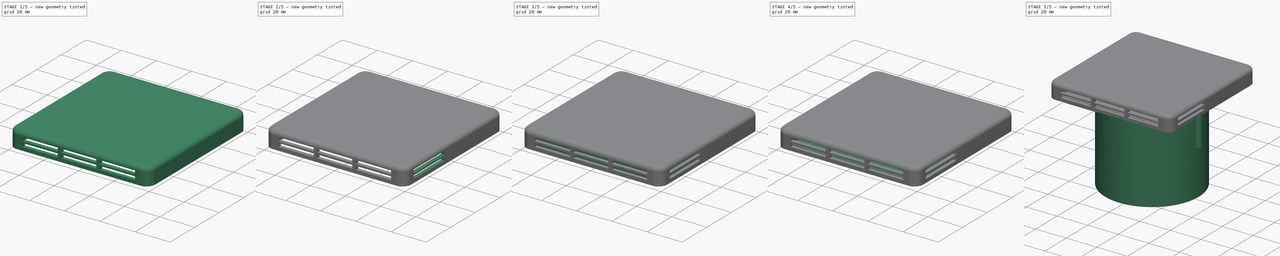
[diagram: build sequence overview — one tinted view per stage of 5, left to right]
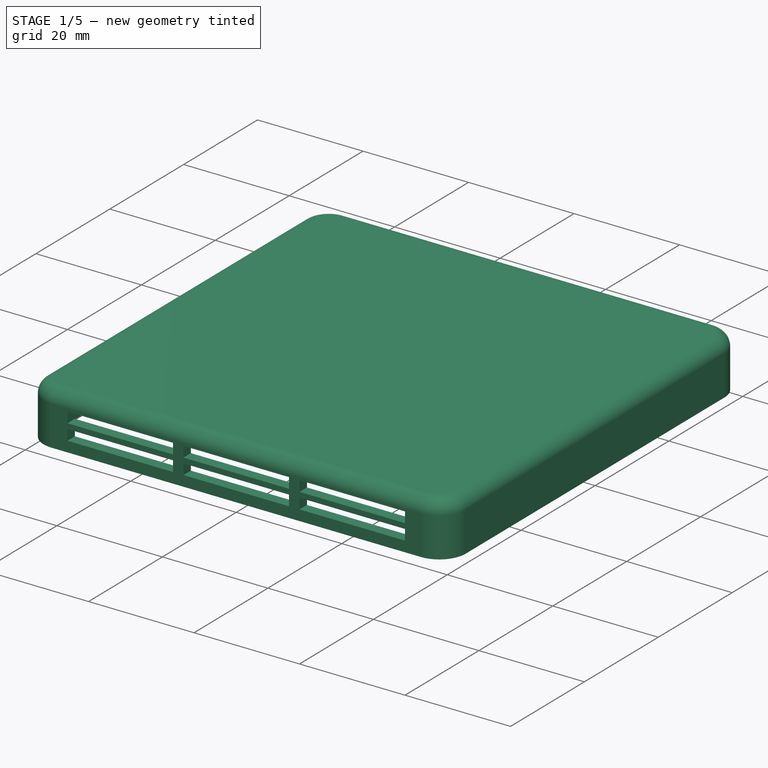
[diagram: stage 1 of 5 — iso view after this stage's code; geometry added in this stage tinted green]
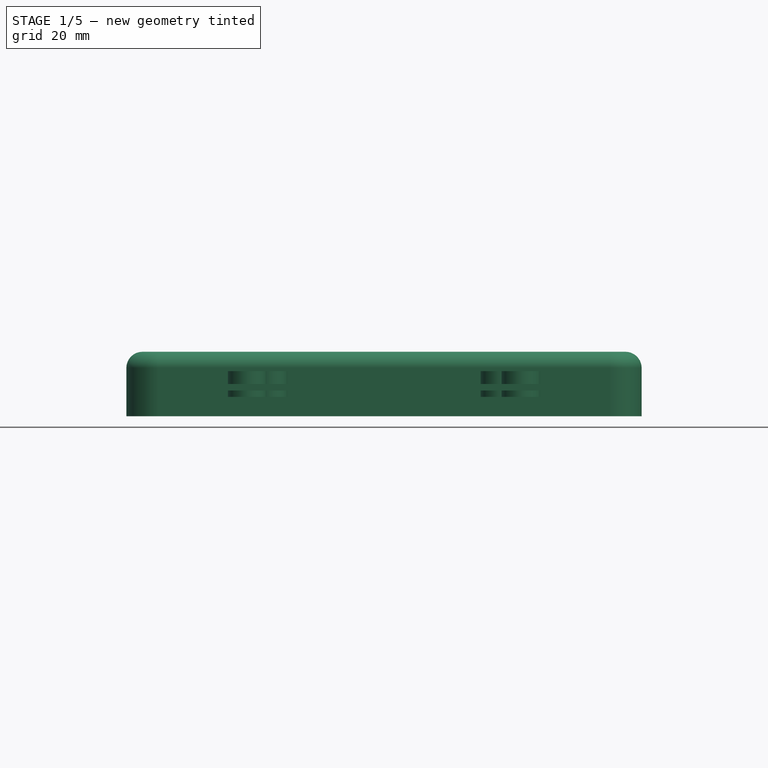
[diagram: stage 1 of 5 — front view after this stage's code; geometry added in this stage tinted green]
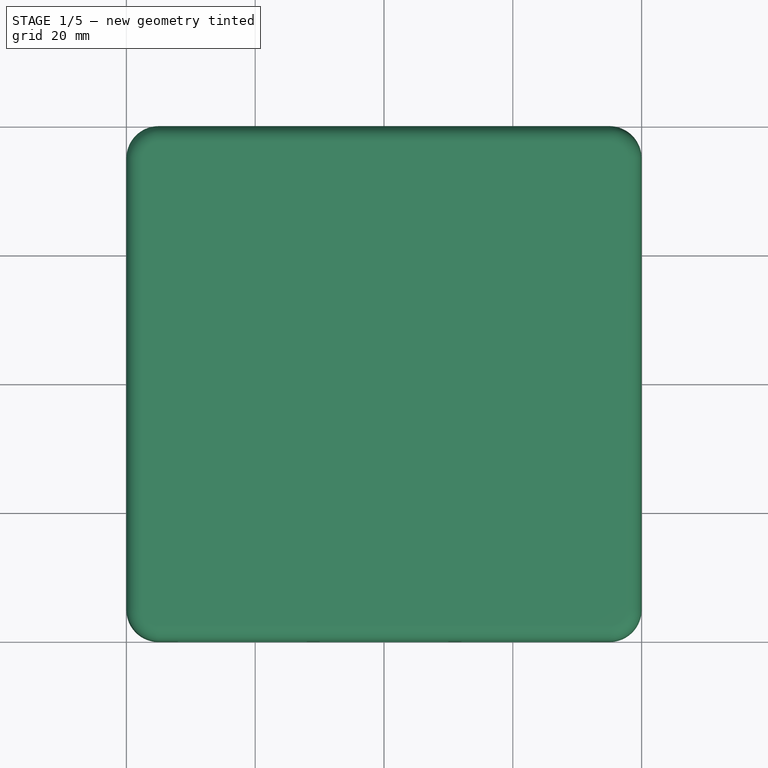
[diagram: stage 1 of 5 — top view after this stage's code; geometry added in this stage tinted green]
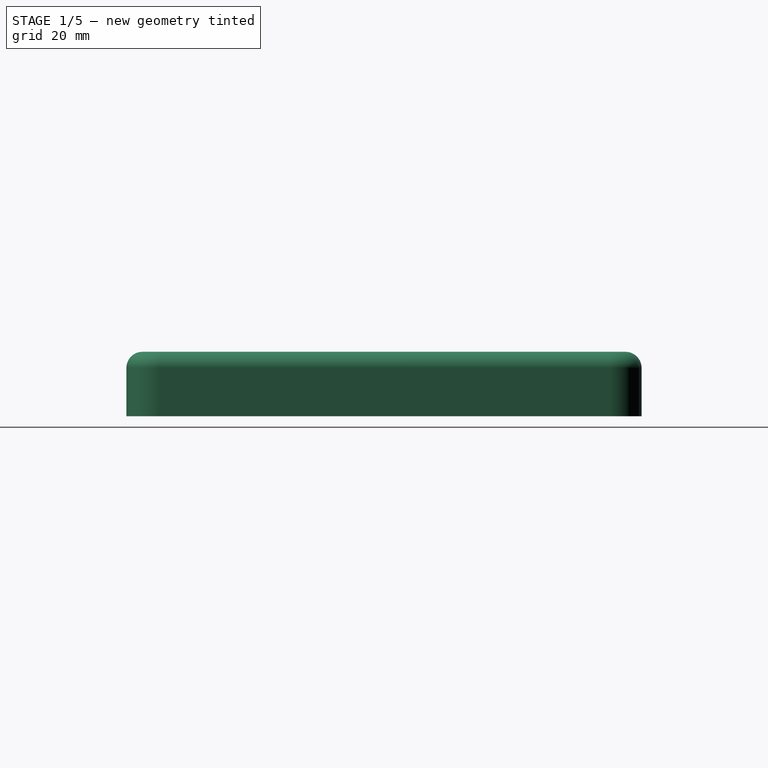
[diagram: stage 1 of 5 — right view after this stage's code; geometry added in this stage tinted green]
FCSTD DOCUMENT  (FreeCAD 0.16R)
Label: thermostat
License: CreativeCommons Attribution-NonCommercial
LicenseURL: http://creativecommons.org/licenses/by-nc/4.0/
objects: Sketcher::SketchObject×22, PartDesign::Pocket×11, PartDesign::Pad×9, App::DocumentObjectGroup×5, PartDesign::Fillet×2, Part::Feature×2, PartDesign::Chamfer×2, App::VRMLObject×1
note: 68 computed .brp shape members not serialized (recipe doc carries the construction recipe); baked Part::Feature solids carry a one-line shape summary decoded from their .brp

FEATURE [Sketcher::SketchObject] Sketch
  sketch-geometry (8):
    g0: LineSegment StartX=-35 StartY=-40 StartZ=0 EndX=35 EndY=-40 EndZ=0
    g1: LineSegment StartX=35 StartY=40 StartZ=0 EndX=-35 EndY=40 EndZ=0
    g2: ArcOfCircle CenterX=-35 CenterY=35 CenterZ=0 NormalX=0 NormalY=0 NormalZ=1 Radius=5 StartAngle=1.5708 EndAngle=3.14159
    g3: LineSegment StartX=-40 StartY=35 StartZ=0 EndX=-40 EndY=-35 EndZ=0
    g4: ArcOfCircle CenterX=35 CenterY=35 CenterZ=0 NormalX=0 NormalY=0 NormalZ=1 Radius=5 StartAngle=0 EndAngle=1.5708
    g5: LineSegment StartX=40 StartY=35 StartZ=0 EndX=40 EndY=-35 EndZ=0
    g6: ArcOfCircle CenterX=35 CenterY=-35 CenterZ=0 NormalX=0 NormalY=0 NormalZ=1 Radius=5 StartAngle=4.71238 EndAngle=6.28319
    g7: ArcOfCircle CenterX=-35 CenterY=-35 CenterZ=0 NormalX=0 NormalY=0 NormalZ=1 Radius=5 StartAngle=3.14159 EndAngle=4.71239
  constraints (22):
    c: Symmetric(g2,g3,g-1)
    c: Symmetric(g4,g5,g-1)
    c: Symmetric(g1,g1,g-2)
    c: Symmetric(g0,g0,g-2)
    c: Coincident(g4,g1)
    c: Coincident(g5,g4)
    c: Coincident(g2,g3)
    c: Coincident(g2,g1)
    c: Coincident(g7,g3)
    c: Coincident(g7,g0)
    c: Coincident(g5,g6)
    c: Coincident(g0,g6)
    c: Distance(g2,g3) = 70
    c: Distance(g1,g0) = 80
    c: Radius(g2) = 5
    c: Symmetric(g2,g7,g-1)
    c: Symmetric(g4,g6,g-1)
    c: Symmetric(g7,g4,g-1)
    c: Symmetric(g2,g5,g-1)
    c: Distance(g3,g5) = 80
    c: Distance(g2,g7) = 70
    c: Distance(g7,g6) = 70
FEATURE [PartDesign::Pad] Pad
  Length = 10
  Length2 = 100
  Sketch = -> Sketch
  Type = 0
FEATURE [PartDesign::Fillet] Fillet
  Base = -> Pad [Edge4,Edge7,Edge10,Edge13,Edge16,Edge19,Edge22,Edge24]
  Radius = 2.5
FEATURE [Sketcher::SketchObject] Sketch002  label="slots bottom"
  ExternalGeometry = -> [Fillet]
  Placement = pos=(0,-40,0) rot=(1,0,0;1.5708rad)
  Support = -> Fillet [Face13]
  sketch-geometry (24):
    g0: LineSegment StartX=-10 StartY=4 StartZ=0 EndX=10 EndY=4 EndZ=0
    g1: LineSegment StartX=10 StartY=4 StartZ=0 EndX=10 EndY=2 EndZ=0
    g2: LineSegment StartX=10 StartY=2 StartZ=0 EndX=-10 EndY=2 EndZ=0
    g3: LineSegment StartX=-10 StartY=2 StartZ=0 EndX=-10 EndY=4 EndZ=0
    g4: LineSegment StartX=-10 StartY=7 StartZ=0 EndX=10 EndY=7 EndZ=0
    g5: LineSegment StartX=10 StartY=7 StartZ=0 EndX=10 EndY=5 EndZ=0
    g6: LineSegment StartX=10 StartY=5 StartZ=0 EndX=-10 EndY=5 EndZ=0
    g7: LineSegment StartX=-10 StartY=5 StartZ=0 EndX=-10 EndY=7 EndZ=0
    g8: LineSegment StartX=-12 StartY=4 StartZ=0 EndX=-32 EndY=4 EndZ=0
    g9: LineSegment StartX=-32 StartY=4 StartZ=0 EndX=-32 EndY=2 EndZ=0
    g10: LineSegment StartX=-32 StartY=2 StartZ=0 EndX=-12 EndY=2 EndZ=0
    g11: LineSegment StartX=-12 StartY=2 StartZ=0 EndX=-12 EndY=4 EndZ=0
    g12: LineSegment StartX=-32 StartY=7 StartZ=0 EndX=-12 EndY=7 EndZ=0
    g13: LineSegment StartX=-12 StartY=7 StartZ=0 EndX=-12 EndY=5 EndZ=0
    g14: LineSegment StartX=-12 StartY=5 StartZ=0 EndX=-32 EndY=5 EndZ=0
    g15: LineSegment StartX=-32 StartY=5 StartZ=0 EndX=-32 EndY=7 EndZ=0
    g16: LineSegment StartX=12 StartY=7 StartZ=0 EndX=32 EndY=7 EndZ=0
    g17: LineSegment StartX=32 StartY=7 StartZ=0 EndX=32 EndY=5 EndZ=0
    g18: LineSegment StartX=32 StartY=5 StartZ=0 EndX=12 EndY=5 EndZ=0
    g19: LineSegment StartX=12 StartY=5 StartZ=0 EndX=12 EndY=7 EndZ=0
    g20: LineSegment StartX=12 StartY=4 StartZ=0 EndX=32 EndY=4 EndZ=0
    g21: LineSegment StartX=32 StartY=4 StartZ=0 EndX=32 EndY=2 EndZ=0
    g22: LineSegment StartX=32 StartY=2 StartZ=0 EndX=12 EndY=2 EndZ=0
    g23: LineSegment StartX=12 StartY=2 StartZ=0 EndX=12 EndY=4 EndZ=0
  constraints (69):
    c: Coincident(g0,g1)
    c: Coincident(g1,g2)
    c: Coincident(g2,g3)
    c: Coincident(g3,g0)
    c: Horizontal(g0)
    c: Vertical(g1)
    c: Vertical(g3)
    c: Symmetric(g2,g1,g-2)
    c: Distance(g1) = 2
    c: Distance(g1,g-3) = 2
    c: Distance(g0) = 20
    c: Coincident(g4,g5)
    c: Coincident(g5,g6)
    c: Coincident(g6,g7)
    c: Coincident(g7,g4)
    c: Horizontal(g4)
    c: Horizontal(g6)
    c: Vertical(g5)
    c: Vertical(g7)
    c: DistanceY(g0,g5) = 1
    c: Symmetric(g6,g5,g-2)
    c: DistanceY(g5,g5) = 2
    c: DistanceX(g4,g4) = 20
    c: Coincident(g8,g9)
    c: Coincident(g9,g10)
    c: Coincident(g10,g11)
    c: Coincident(g11,g8)
    c: Horizontal(g8)
    c: Horizontal(g10)
    c: Vertical(g9)
    c: Vertical(g11)
    c: Coincident(g12,g13)
    c: Coincident(g13,g14)
    c: Coincident(g14,g15)
    c: Coincident(g15,g12)
    c: Horizontal(g12)
    c: Horizontal(g14)
    c: Vertical(g13)
    c: Vertical(g15)
    c: Coincident(g16,g17)
    c: Coincident(g17,g18)
    c: Coincident(g18,g19)
    c: Coincident(g19,g16)
    c: Horizontal(g16)
    c: Horizontal(g18)
    c: Vertical(g17)
    c: Vertical(g19)
    c: Coincident(g20,g21)
    c: Coincident(g21,g22)
    c: Coincident(g22,g23)
    c: Coincident(g23,g20)
    c: Horizontal(g20)
    c: Horizontal(g22)
    c: Vertical(g21)
    c: Vertical(g23)
    c: Symmetric(g10,g22,g-2)
    c: Symmetric(g13,g18,g-2)
    c: DistanceY(g15,g15) = 2
    c: DistanceY(g9,g9) = 2
    c: DistanceX(g10,g2) = 2
    c: DistanceX(g1,g22) = 2
    c: DistanceY(g-3,g9) = 2
    c: Symmetric(g9,g21,g-2)
    c: Symmetric(g20,g8,g-2)
    c: Symmetric(g12,g16,g-2)
    c: DistanceX(g12,g4) = 2
    c: DistanceY(g8,g14) = 1
    c: DistanceX(g12,g12) = 20
    c: DistanceX(g10,g10) = 20
FEATURE [PartDesign::Pocket] Pocket
  Length = 2
  Sketch = -> Sketch002
  Type = 0
FEATURE [Sketcher::SketchObject] Sketch003  label="inside"
  ExternalGeometry = -> [Pocket]
  Placement = pos=(0,0,0) rot=(1,0,0;3.14159rad)
  Support = -> Pocket [Face4]
  sketch-geometry (8):
    g0: ArcOfCircle CenterX=35 CenterY=35 CenterZ=0 NormalX=0 NormalY=0 NormalZ=1 Radius=3.00003 StartAngle=4.5983e-08 EndAngle=1.5708
    g1: ArcOfCircle CenterX=35 CenterY=-35 CenterZ=0 NormalX=0 NormalY=0 NormalZ=1 Radius=3.00001 StartAngle=4.71239 EndAngle=6.28319
    g2: ArcOfCircle CenterX=-35 CenterY=-35 CenterZ=0 NormalX=0 NormalY=0 NormalZ=1 Radius=3 StartAngle=3.14159 EndAngle=4.71239
    g3: ArcOfCircle CenterX=-35 CenterY=35 CenterZ=0 NormalX=0 NormalY=0 NormalZ=1 Radius=3 StartAngle=1.5708 EndAngle=3.14159
    g4: LineSegment StartX=-35 StartY=38 StartZ=0 EndX=35 EndY=38 EndZ=0
    g5: LineSegment StartX=38 StartY=35 StartZ=0 EndX=38 EndY=-35 EndZ=0
    g6: LineSegment StartX=35 StartY=-38 StartZ=0 EndX=-35 EndY=-38 EndZ=0
    g7: LineSegment StartX=-38 StartY=-35 StartZ=0 EndX=-38 EndY=35 EndZ=0
  constraints (28):
    c: Coincident(g4,g3)
    c: Coincident(g4,g0)
    c: Coincident(g5,g0)
    c: Coincident(g5,g1)
    c: Vertical(g5)
    c: Coincident(g6,g1)
    c: Coincident(g6,g2)
    c: Horizontal(g6)
    c: Coincident(g7,g2)
    c: Coincident(g7,g3)
    c: Vertical(g7)
    c: Horizontal(g4)
    c: Tangent(g4,g3)
    c: Tangent(g0,g5)
    c: Tangent(g1,g6)
    c: Tangent(g2,g7)
    c: Tangent(g1,g5)
    c: Tangent(g0,g4)
    c: Tangent(g3,g7)
    c: Tangent(g2,g6)
    c: Distance(g0,g-4) = 2
    c: Distance(g1,g-3) = 2
    c: Distance(g0,g-6) = 2
    c: Distance(g3,g-5) = 2
    c: Distance(g0,g-4) = 2
    c: Distance(g-5,g3) = 2
    c: Distance(g2,g-3) = 2
    c: Distance(g1,g-3) = 2
FEATURE [PartDesign::Pocket] Pocket001
  Length = 7
  Sketch = -> Sketch003
  Type = 0
FEATURE [Sketcher::SketchObject] Sketch008  label="bottom corners"
  Placement = pos=(0,0,7) rot=(0,0,1;0rad)
  sketch-geometry (20):
    g0: ArcOfCircle CenterX=-35 CenterY=35 CenterZ=0 NormalX=0 NormalY=0 NormalZ=1 Radius=2.5 StartAngle=1.5708 EndAngle=3.14159
    g1: ArcOfCircle CenterX=35 CenterY=35 CenterZ=0 NormalX=0 NormalY=0 NormalZ=1 Radius=2.5 StartAngle=8.67899e-06 EndAngle=1.5708
    g2: LineSegment StartX=37.5 StartY=35 StartZ=0 EndX=37.5 EndY=-35 EndZ=0
    g3: ArcOfCircle CenterX=35 CenterY=-35 CenterZ=0 NormalX=0 NormalY=0 NormalZ=1 Radius=2.5 StartAngle=4.71239 EndAngle=6.28319
    g4: ArcOfCircle CenterX=-35 CenterY=-35 CenterZ=0 NormalX=0 NormalY=0 NormalZ=1 Radius=2.5 StartAngle=3.14159 EndAngle=4.71239
    g5: LineSegment StartX=-37.5 StartY=35 StartZ=0 EndX=-37.5 EndY=-35 EndZ=0
    g6: LineSegment StartX=-35 StartY=37.5 StartZ=0 EndX=-20 EndY=37.5 EndZ=0
    g7: LineSegment StartX=-20 StartY=37.5 StartZ=0 EndX=-20 EndY=35.5 EndZ=0
    g8: LineSegment StartX=-20 StartY=35.5 StartZ=0 EndX=-35.5 EndY=35.5 EndZ=0
    g9: LineSegment StartX=-35.5 StartY=35.5 StartZ=0 EndX=-35.5 EndY=-35.5 EndZ=0
    g10: LineSegment StartX=-35.5 StartY=-35.5 StartZ=0 EndX=-25 EndY=-35.5 EndZ=0
    g11: LineSegment StartX=-25 StartY=-35.5 StartZ=0 EndX=-25 EndY=-37.5 EndZ=0
    g12: LineSegment StartX=-25 StartY=-37.5 StartZ=0 EndX=-35 EndY=-37.5 EndZ=0
    g13: LineSegment StartX=35 StartY=37.5 StartZ=0 EndX=20 EndY=37.5 EndZ=0
    g14: LineSegment StartX=20 StartY=37.5 StartZ=0 EndX=20 EndY=35.5 EndZ=0
    g15: LineSegment StartX=20 StartY=35.5 StartZ=0 EndX=35.5 EndY=35.5 EndZ=0
    g16: LineSegment StartX=35.5 StartY=35.5 StartZ=0 EndX=35.5 EndY=-35.5 EndZ=0
    g17: LineSegment StartX=35.5 StartY=-35.5 StartZ=0 EndX=25 EndY=-35.5 EndZ=0
    g18: LineSegment StartX=25 StartY=-35.5 StartZ=0 EndX=25 EndY=-37.5 EndZ=0
    g19: LineSegment StartX=25 StartY=-37.5 StartZ=0 EndX=35 EndY=-37.5 EndZ=0
  constraints (61):
    c: Coincident(g2,g1)
    c: Coincident(g2,g3)
    c: Radius(g0) = 2.5
    c: Coincident(g5,g0)
    c: Coincident(g5,g4)
    c: Coincident(g6,g7)
    c: Coincident(g8,g9)
    c: Coincident(g9,g10)
    c: Coincident(g10,g11)
    c: Coincident(g11,g12)
    c: Coincident(g12,g4)
    c: Coincident(g13,g14)
    c: Coincident(g14,g15)
    c: Coincident(g15,g16)
    c: Coincident(g16,g17)
    c: Coincident(g17,g18)
    c: Coincident(g18,g19)
    c: Coincident(g19,g3)
    c: Coincident(g8,g7)
    c: Coincident(g6,g0)
    c: Coincident(g13,g1)
    c: Tangent(g6,g0)
    c: Horizontal(g6)
    c: Vertical(g7)
    c: Horizontal(g8)
    c: DistanceY(g7,g7) = 2
    c: Horizontal(g15)
    c: Vertical(g9)
    c: Tangent(g0,g5)
    c: Vertical(g5)
    c: DistanceX(g0,g8) = 2
    c: Radius(g1) = 2.5
    c: Radius(g3) = 2.5
    c: Radius(g4) = 2.5
    c: Tangent(g4,g5)
    c: Tangent(g4,g12)
    c: Horizontal(g12)
    c: Horizontal(g10)
    c: Vertical(g11)
    c: Symmetric(g0,g4,g-1)
    c: DistanceY(g11,g11) = 2
    c: Horizontal(g13)
    c: Vertical(g16)
    c: Vertical(g2)
    c: Vertical(g18)
    c: Tangent(g2,g3)
    c: Horizontal(g17)
    c: Horizontal(g19)
    c: DistanceX(g6,g13) = 40
    c: Vertical(g14)
    c: DistanceY(g18,g18) = 2
    c: DistanceX(g15,g1) = 2
    c: DistanceY(g14,g14) = 2
    c: DistanceX(g11,g18) = 50
    c: Symmetric(g11,g18,g-2)
    c: Tangent(g3,g19)
    c: DistanceX(g0,g1) = 70
    c: DistanceY(g4,g0) = 70
    c: Symmetric(g0,g1,g-2)
    c: Symmetric(g14,g7,g-2)
    c: Tangent(g2,g1)
FEATURE [Sketcher::SketchObject] Sketch009
  Placement = pos=(0,0,0) rot=(1,0,0;3.14159rad)
  Support = -> Pocket002 [Face4]
  sketch-geometry (8):
    g0: ArcOfCircle CenterX=0 CenterY=0 CenterZ=0 NormalX=0 NormalY=0 NormalZ=1 Radius=28.4 StartAngle=2.96706 EndAngle=3.31613
    g1: ArcOfCircle CenterX=0 CenterY=0 CenterZ=0 NormalX=0 NormalY=0 NormalZ=1 Radius=31.6 StartAngle=2.96706 EndAngle=3.31613
    g2: ArcOfCircle CenterX=-29.5442 CenterY=5.20945 CenterZ=0 NormalX=0 NormalY=0 NormalZ=1 Radius=1.6 StartAngle=6.10865 EndAngle=9.25025
    g3: ArcOfCircle CenterX=-29.5442 CenterY=-5.20945 CenterZ=0 NormalX=0 NormalY=0 NormalZ=1 Radius=1.6 StartAngle=3.31613 EndAngle=6.45772
    g4: ArcOfCircle CenterX=0 CenterY=0 CenterZ=0 NormalX=0 NormalY=0 NormalZ=1 Radius=28.4 StartAngle=6.10865 EndAngle=6.45772
    g5: ArcOfCircle CenterX=0 CenterY=0 CenterZ=0 NormalX=0 NormalY=0 NormalZ=1 Radius=31.6 StartAngle=6.10865 EndAngle=6.45772
    g6: ArcOfCircle CenterX=29.5442 CenterY=5.20945 CenterZ=0 NormalX=0 NormalY=0 NormalZ=1 Radius=1.6 StartAngle=0.174539 EndAngle=3.31613
    g7: ArcOfCircle CenterX=29.5442 CenterY=-5.20945 CenterZ=0 NormalX=0 NormalY=0 NormalZ=1 Radius=1.6 StartAngle=2.96706 EndAngle=6.10865
  constraints (25):
    c: Coincident(g0,g-1)
    c: Coincident(g1,g-1)
    c: Radius(g0) = 28.4
    c: Radius(g1) = 31.6
    c: Coincident(g2,g1)
    c: Coincident(g0,g2)
    c: Tangent(g2,g1)
    c: Tangent(g0,g2)
    c: Coincident(g3,g1)
    c: Coincident(g3,g0)
    c: Tangent(g0,g3)
    c: Tangent(g3,g1)
    c: Symmetric(g2,g3,g-1)
    c: Angle(g0) = 0.349066
    c: Coincident(g4,g-1)
    c: Coincident(g5,g-1)
    c: Coincident(g6,g4)
    c: Coincident(g7,g4)
    c: Coincident(g6,g5)
    c: Symmetric(g6,g3,g-1)
    c: Symmetric(g7,g2,g-1)
    c: Coincident(g7,g5)
    c: Symmetric(g0,g4,g-1)
    c: Tangent(g5,g7)
    c: Tangent(g6,g5)
FEATURE [Part::Feature] Part__Feature  label="COMPOUND"
  Placement = pos=(-145,95,1) rot=(0,0,1;0rad)
  shape: bbox 50 x 60 x 1.6 mm, 62 faces (baked)
FEATURE [App::VRMLObject] can_node  label="can-node"
  Placement = pos=(-145,95,2) rot=(0,0,1;0rad)
  Resources = can_node/shapes3D/LQFP-64_10x10mm_Pitch0.5mm.wrl | can_node/shapes3D/C_0402.wrl | can_node/shapes3D/TI-DCN.wrl | can_node/shapes3D/WAGO_218-104.wrl | can_node/shapes3D/C_1210.wrl | can_node/shapes3D/SOIC-8-N.wrl | can_node/shapes3D/C_0805.wrl | can_node/shapes3D/C_1206.wrl | can_node/shapes3D/SMA_Handsoldering.wrl | can_node/shapes3D/LED_0603.wrl | can_node/shapes3D/SDE0604A.wrl | can_node/shapes3D/R_1206.wrl | can_node/shapes3D/R_0402.wrl | can_node/shapes3D/Push_Button_KMR2.wrl | can_node/shapes3D/TSOT-6-MK06A_Handsoldering.wrl | can_node/shapes3D/SC-70-5.wrl | can_node/shapes3D/crystal_DT-26.wrl | can_node/shapes3D/Everlight_19-337.wrl | can_node/shapes3D/TIHDC1080.wrl
FEATURE [App::DocumentObjectGroup] Group004  label="PCB"
  Group = -> [Board_Geoms,Part__Feature,can_node]
FEATURE [Sketcher::SketchObject] Sketch011
  Placement = pos=(0,0,7) rot=(1,0,0;3.14159rad)
  sketch-geometry (2):
    g0: Circle CenterX=18 CenterY=0 CenterZ=0 NormalX=0 NormalY=0 NormalZ=1 Radius=3
    g1: Circle CenterX=-18 CenterY=0 CenterZ=0 NormalX=0 NormalY=0 NormalZ=1 Radius=3
  constraints (6):
    c: PointOnObject(g0,g-1)
    c: DistanceX(g-1,g0) = 18
    c: Radius(g0) = 3
    c: PointOnObject(g1,g-1)
    c: DistanceX(g1,g-1) = 18
    c: Radius(g1) = 3
FEATURE [Sketcher::SketchObject] Sketch013  label="Pins"
  Placement = pos=(0,0,7) rot=(1,0,0;3.14159rad)
  Support = -> Pocket001 [Face51]
  sketch-geometry (6):
    g0: Circle CenterX=-21.25 CenterY=26.25 CenterZ=0 NormalX=0 NormalY=0 NormalZ=1 Radius=3
    g1: Circle CenterX=21.25 CenterY=26.25 CenterZ=0 NormalX=0 NormalY=0 NormalZ=1 Radius=3
    g2: Circle CenterX=-21.25 CenterY=-26.25 CenterZ=0 NormalX=0 NormalY=0 NormalZ=1 Radius=3
    g3: Circle CenterX=21.25 CenterY=-26.25 CenterZ=0 NormalX=0 NormalY=0 NormalZ=1 Radius=3
    g4: Circle CenterX=-18 CenterY=0 CenterZ=0 NormalX=0 NormalY=0 NormalZ=1 Radius=3
    g5: Circle CenterX=18 CenterY=0 CenterZ=0 NormalX=0 NormalY=0 NormalZ=1 Radius=3
  constraints (16):
    c: DistanceY(g-1,g0) = 26.25
    c: DistanceY(g2,g-1) = 26.25
    c: DistanceX(g0,g1) = 42.5
    c: Symmetric(g3,g0,g-1)
    c: Symmetric(g1,g2,g-1)
    c: Symmetric(g0,g1,g-2)
    c: Radius(g1) = 3
    c: Radius(g0) = 3
    c: Radius(g3) = 3
    c: Radius(g2) = 3
    c: PointOnObject(g4,g-1)
    c: PointOnObject(g5,g-1)
    c: Symmetric(g4,g5,g-2)
    c: DistanceX(g4,g5) = 36
    c: Radius(g4) = 3
    c: Equal(g4,g5)
FEATURE [PartDesign::Pad] Pad007
  Length = 4
  Length2 = 100
  Sketch = -> Sketch013
  Type = 0
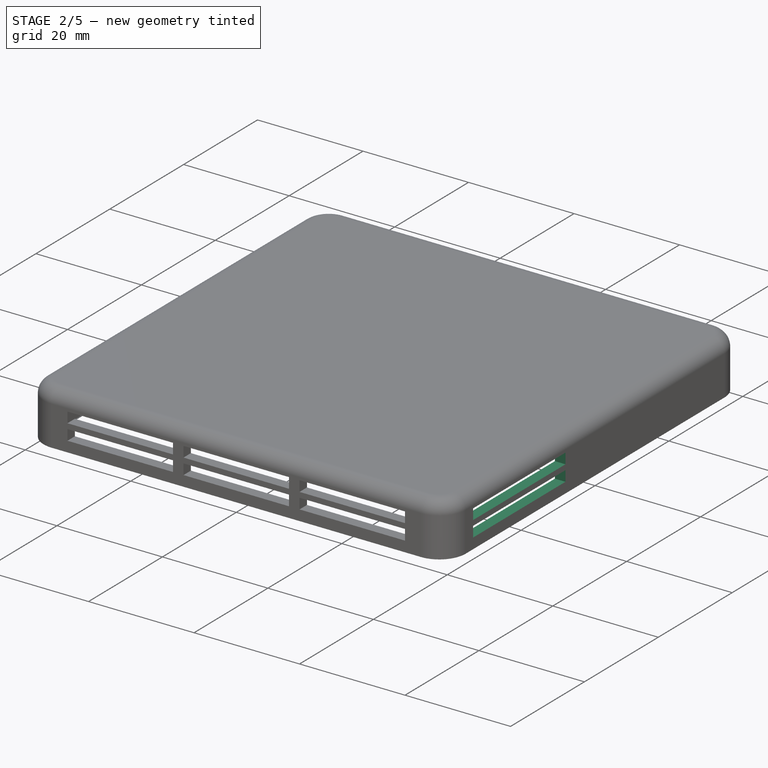
[diagram: stage 2 of 5 — iso view after this stage's code; geometry added in this stage tinted green]
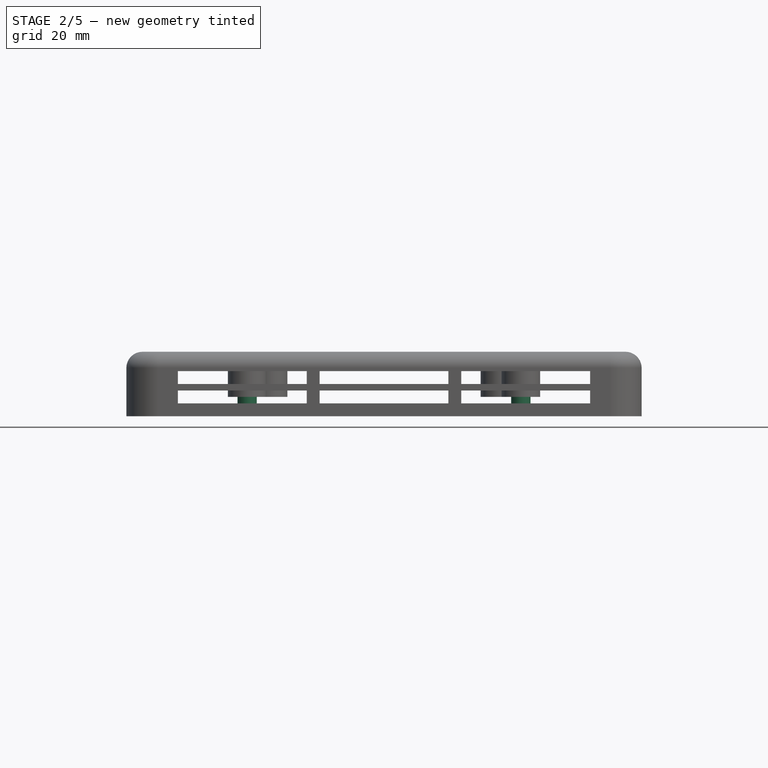
[diagram: stage 2 of 5 — front view after this stage's code; geometry added in this stage tinted green]
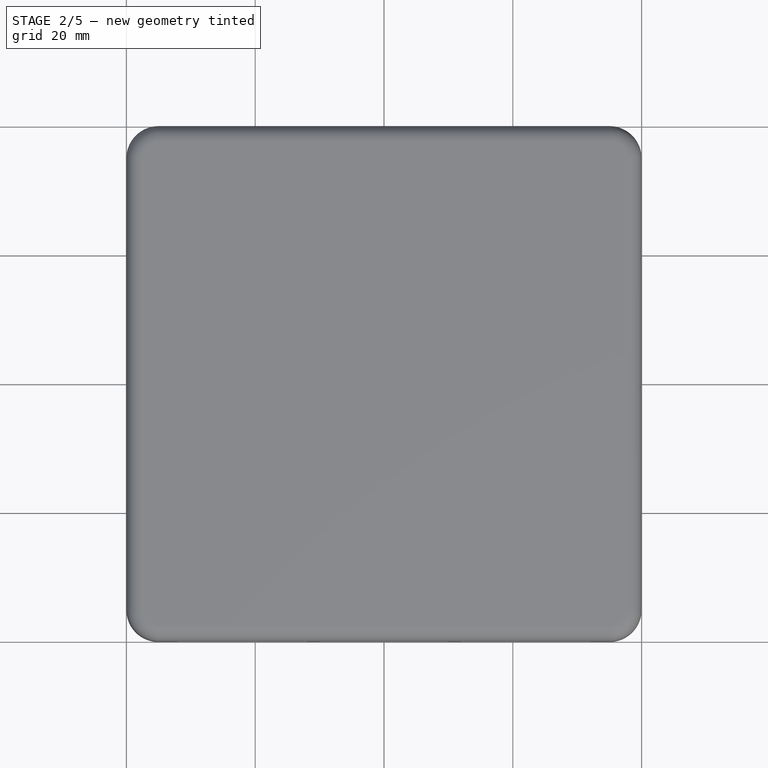
[diagram: stage 2 of 5 — top view after this stage's code; geometry added in this stage tinted green]
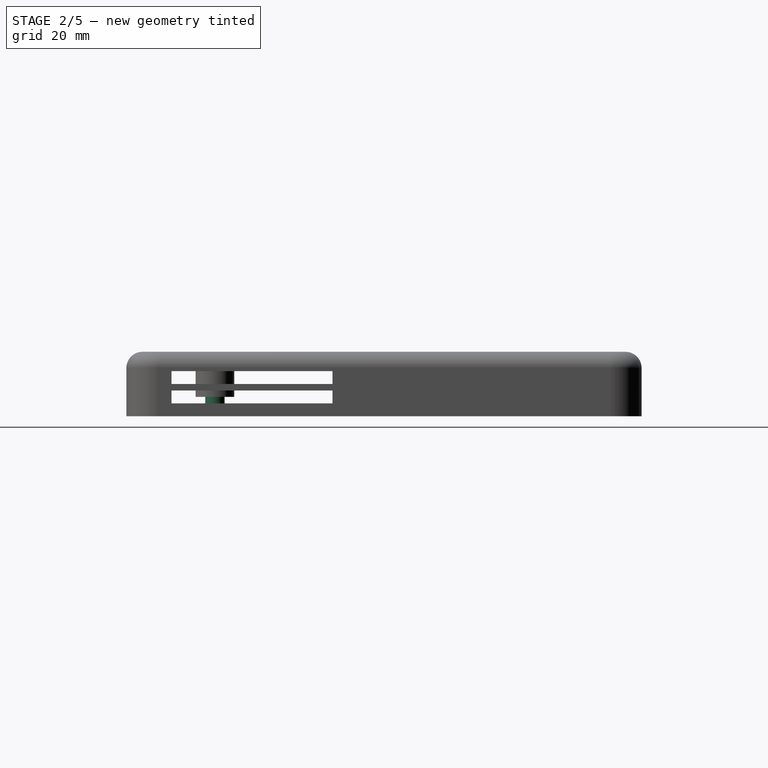
[diagram: stage 2 of 5 — right view after this stage's code; geometry added in this stage tinted green]
FEATURE [Sketcher::SketchObject] Sketch014  label="Pins Top"
  Placement = pos=(0,0,3) rot=(1,0,0;3.14159rad)
  Support = -> Pad007 [Face59]
  sketch-geometry (4):
    g0: Circle CenterX=-21.25 CenterY=26.25 CenterZ=0 NormalX=0 NormalY=0 NormalZ=1 Radius=1.5
    g1: Circle CenterX=21.25 CenterY=26.25 CenterZ=0 NormalX=0 NormalY=0 NormalZ=1 Radius=1.5
    g2: Circle CenterX=-21.25 CenterY=-26.25 CenterZ=0 NormalX=0 NormalY=0 NormalZ=1 Radius=1.5
    g3: Circle CenterX=21.25 CenterY=-26.25 CenterZ=0 NormalX=0 NormalY=0 NormalZ=1 Radius=1.5
  constraints (10):
    c: DistanceX(g0,g1) = 42.5
    c: Radius(g2) = 1.5
    c: Equal(g2,g3)
    c: Equal(g2,g1)
    c: Equal(g2,g0)
    c: DistanceY(g-1,g0) = 26.25
    c: DistanceY(g2,g-1) = 26.25
    c: DistanceX(g2,g3) = 42.5
    c: Symmetric(g0,g1,g-2)
    c: Symmetric(g2,g3,g-2)
FEATURE [PartDesign::Pad] Pad008
  Length = 2
  Length2 = 100
  Sketch = -> Sketch014
  Type = 0
FEATURE [Sketcher::SketchObject] Sketch015  label="slots left"
  ExternalGeometry = -> [Pad008]
  Placement = pos=(-40,0,0) rot=(0.57735,-0.57735,-0.57735;2.0944rad)
  Support = -> Pad008 [Face12]
  sketch-geometry (8):
    g0: LineSegment StartX=8 StartY=4 StartZ=0 EndX=33 EndY=4 EndZ=0
    g1: LineSegment StartX=33 StartY=4 StartZ=0 EndX=33 EndY=2 EndZ=0
    g2: LineSegment StartX=33 StartY=2 StartZ=0 EndX=8 EndY=2 EndZ=0
    g3: LineSegment StartX=8 StartY=2 StartZ=0 EndX=8 EndY=4 EndZ=0
    g4: LineSegment StartX=8 StartY=7 StartZ=0 EndX=33 EndY=7 EndZ=0
    g5: LineSegment StartX=33 StartY=7 StartZ=0 EndX=33 EndY=5 EndZ=0
    g6: LineSegment StartX=33 StartY=5 StartZ=0 EndX=8 EndY=5 EndZ=0
    g7: LineSegment StartX=8 StartY=5 StartZ=0 EndX=8 EndY=7 EndZ=0
  constraints (24):
    c: Coincident(g0,g1)
    c: Coincident(g2,g3)
    c: Coincident(g3,g0)
    c: Horizontal(g0)
    c: Horizontal(g2)
    c: Vertical(g1)
    c: Vertical(g3)
    c: DistanceY(g3,g3) = 2
    c: Coincident(g2,g1)
    c: DistanceY(g-4,g2) = 2
    c: DistanceX(g1,g-5) = 2
    c: DistanceX(g2,g2) = 25
    c: Coincident(g4,g5)
    c: Coincident(g6,g7)
    c: Coincident(g7,g4)
    c: Horizontal(g4)
    c: Horizontal(g6)
    c: Vertical(g5)
    c: Vertical(g7)
    c: Equal(g3,g7) = 2
    c: Coincident(g6,g5)
    c: Equal(g2,g6) = 25
    c: DistanceX(g4,g-5) = 2
    c: DistanceY(g0,g5) = 1
FEATURE [PartDesign::Pocket] Pocket004
  Length = 2
  Sketch = -> Sketch015
  Type = 0
FEATURE [Sketcher::SketchObject] Sketch016  label="slots right"
  ExternalGeometry = -> [Pocket004]
  Placement = pos=(40,0,0) rot=(0.57735,0.57735,0.57735;2.0944rad)
  Support = -> Pocket004 [Face2]
  sketch-geometry (8):
    g0: LineSegment StartX=-33 StartY=4 StartZ=0 EndX=-8 EndY=4 EndZ=0
    g1: LineSegment StartX=-8 StartY=4 StartZ=0 EndX=-8 EndY=2 EndZ=0
    g2: LineSegment StartX=-8 StartY=2 StartZ=0 EndX=-33 EndY=2 EndZ=0
    g3: LineSegment StartX=-33 StartY=2 StartZ=0 EndX=-33 EndY=4 EndZ=0
    g4: LineSegment StartX=-33 StartY=7 StartZ=0 EndX=-8 EndY=7 EndZ=0
    g5: LineSegment StartX=-8 StartY=7 StartZ=0 EndX=-8 EndY=5 EndZ=0
    g6: LineSegment StartX=-8 StartY=5 StartZ=0 EndX=-33 EndY=5 EndZ=0
    g7: LineSegment StartX=-33 StartY=5 StartZ=0 EndX=-33 EndY=7 EndZ=0
  constraints (24):
    c: Coincident(g0,g1)
    c: Coincident(g1,g2)
    c: Coincident(g2,g3)
    c: Coincident(g3,g0)
    c: Horizontal(g0)
    c: Horizontal(g2)
    c: Vertical(g1)
    c: Vertical(g3)
    c: Coincident(g4,g5)
    c: Coincident(g5,g6)
    c: Coincident(g6,g7)
    c: Coincident(g7,g4)
    c: Horizontal(g4)
    c: Horizontal(g6)
    c: Vertical(g5)
    c: Vertical(g7)
    c: DistanceX(g2,g2) = 25
    c: DistanceY(g-4,g2) = 2
    c: DistanceY(g2,g0) = 2
    c: DistanceY(g0,g6) = 1
    c: DistanceY(g7,g7) = 2
    c: DistanceX(g4,g4) = 25
    c: DistanceX(g-4,g2) = 2
    c: DistanceX(g-4,g4) = 2
FEATURE [PartDesign::Pocket] Pocket005
  Length = 2
  Sketch = -> Sketch016
  Type = 0
FEATURE [Sketcher::SketchObject] Sketch017  label="slots top"
  ExternalGeometry = -> [Fillet]
  Placement = pos=(0,40,0) rot=(0,0.707107,0.707107;3.14159rad)
  Support = -> Pocket005 [Face5]
  sketch-geometry (24):
    g0: LineSegment StartX=-10 StartY=4 StartZ=0 EndX=10 EndY=4 EndZ=0
    g1: LineSegment StartX=10 StartY=4 StartZ=0 EndX=10 EndY=2 EndZ=0
    g2: LineSegment StartX=10 StartY=2 StartZ=0 EndX=-10 EndY=2 EndZ=0
    g3: LineSegment StartX=-10 StartY=2 StartZ=0 EndX=-10 EndY=4 EndZ=0
    g4: LineSegment StartX=-10 StartY=7 StartZ=0 EndX=10 EndY=7 EndZ=0
    g5: LineSegment StartX=10 StartY=7 StartZ=0 EndX=10 EndY=5 EndZ=0
    g6: LineSegment StartX=10 StartY=5 StartZ=0 EndX=-10 EndY=5 EndZ=0
    g7: LineSegment StartX=-10 StartY=5 StartZ=0 EndX=-10 EndY=7 EndZ=0
    g8: LineSegment StartX=-12 StartY=4 StartZ=0 EndX=-32 EndY=4 EndZ=0
    g9: LineSegment StartX=-32 StartY=4 StartZ=0 EndX=-32 EndY=2 EndZ=0
    g10: LineSegment StartX=-32 StartY=2 StartZ=0 EndX=-12 EndY=2 EndZ=0
    g11: LineSegment StartX=-12 StartY=2 StartZ=0 EndX=-12 EndY=4 EndZ=0
    g12: LineSegment StartX=-32 StartY=7 StartZ=0 EndX=-12 EndY=7 EndZ=0
    g13: LineSegment StartX=-12 StartY=7 StartZ=0 EndX=-12 EndY=5 EndZ=0
    g14: LineSegment StartX=-12 StartY=5 StartZ=0 EndX=-32 EndY=5 EndZ=0
    g15: LineSegment StartX=-32 StartY=5 StartZ=0 EndX=-32 EndY=7 EndZ=0
    g16: LineSegment StartX=12 StartY=7 StartZ=0 EndX=32 EndY=7 EndZ=0
    g17: LineSegment StartX=32 StartY=7 StartZ=0 EndX=32 EndY=5 EndZ=0
    g18: LineSegment StartX=32 StartY=5 StartZ=0 EndX=12 EndY=5 EndZ=0
    g19: LineSegment StartX=12 StartY=5 StartZ=0 EndX=12 EndY=7 EndZ=0
    g20: LineSegment StartX=12 StartY=4 StartZ=0 EndX=32 EndY=4 EndZ=0
    g21: LineSegment StartX=32 StartY=4 StartZ=0 EndX=32 EndY=2 EndZ=0
    g22: LineSegment StartX=32 StartY=2 StartZ=0 EndX=12 EndY=2 EndZ=0
    g23: LineSegment StartX=12 StartY=2 StartZ=0 EndX=12 EndY=4 EndZ=0
  constraints (69):
    c: Coincident(g0,g1)
    c: Coincident(g1,g2)
    c: Coincident(g2,g3)
    c: Coincident(g3,g0)
    c: Horizontal(g0)
    c: Vertical(g1)
    c: Vertical(g3)
    c: Symmetric(g2,g1,g-2)
    c: Distance(g1) = 2
    c: Distance(g1,g-3) = 2
    c: Distance(g0) = 20
    c: Coincident(g4,g5)
    c: Coincident(g5,g6)
    c: Coincident(g6,g7)
    c: Coincident(g7,g4)
    c: Horizontal(g4)
    c: Horizontal(g6)
    c: Vertical(g5)
    c: Vertical(g7)
    c: DistanceY(g0,g5) = 1
    c: Symmetric(g6,g5,g-2)
    c: DistanceY(g5,g5) = 2
    c: DistanceX(g4,g4) = 20
    c: Coincident(g8,g9)
    c: Coincident(g9,g10)
    c: Coincident(g10,g11)
    c: Coincident(g11,g8)
    c: Horizontal(g8)
    c: Horizontal(g10)
    c: Vertical(g9)
    c: Vertical(g11)
    c: Coincident(g12,g13)
    c: Coincident(g13,g14)
    c: Coincident(g14,g15)
    c: Coincident(g15,g12)
    c: Horizontal(g12)
    c: Horizontal(g14)
    c: Vertical(g13)
    c: Vertical(g15)
    c: Coincident(g16,g17)
    c: Coincident(g17,g18)
    c: Coincident(g18,g19)
    c: Coincident(g19,g16)
    c: Horizontal(g16)
    c: Horizontal(g18)
    c: Vertical(g17)
    c: Vertical(g19)
    c: Coincident(g20,g21)
    c: Coincident(g21,g22)
    c: Coincident(g22,g23)
    c: Coincident(g23,g20)
    c: Horizontal(g20)
    c: Horizontal(g22)
    c: Vertical(g21)
    c: Vertical(g23)
    c: Symmetric(g10,g22,g-2)
    c: Symmetric(g13,g18,g-2)
    c: DistanceY(g15,g15) = 2
    c: DistanceY(g9,g9) = 2
    c: DistanceX(g10,g2) = 2
    c: DistanceX(g1,g22) = 2
    c: DistanceY(g-3,g9) = 2
    c: Symmetric(g9,g21,g-2)
    c: Symmetric(g20,g8,g-2)
    c: Symmetric(g12,g16,g-2)
    c: DistanceX(g12,g4) = 2
    c: DistanceY(g8,g14) = 1
    c: DistanceX(g12,g12) = 20
    c: DistanceX(g10,g10) = 20
FEATURE [PartDesign::Pocket] Pocket006
  Length = 2
  Sketch = -> Sketch017
  Type = 0
FEATURE [Sketcher::SketchObject] Sketch018  label="pins middle drill"
  Placement = pos=(0,0,3) rot=(1,0,0;3.14159rad)
  Support = -> Pocket006 [Face99]
  sketch-geometry (2):
    g0: Circle CenterX=-18 CenterY=0 CenterZ=0 NormalX=0 NormalY=0 NormalZ=1 Radius=1.4
    g1: Circle CenterX=18 CenterY=0 CenterZ=0 NormalX=0 NormalY=0 NormalZ=1 Radius=1.4
  constraints (6):
    c: PointOnObject(g0,g-1)
    c: PointOnObject(g1,g-1)
    c: Radius(g0) = 1.4
    c: Equal(g0,g1)
    c: Symmetric(g0,g1,g-2)
    c: DistanceX(g0,g1) = 36
FEATURE [PartDesign::Pocket] Pocket007
  Length = 4
  Sketch = -> Sketch018
  Type = 0
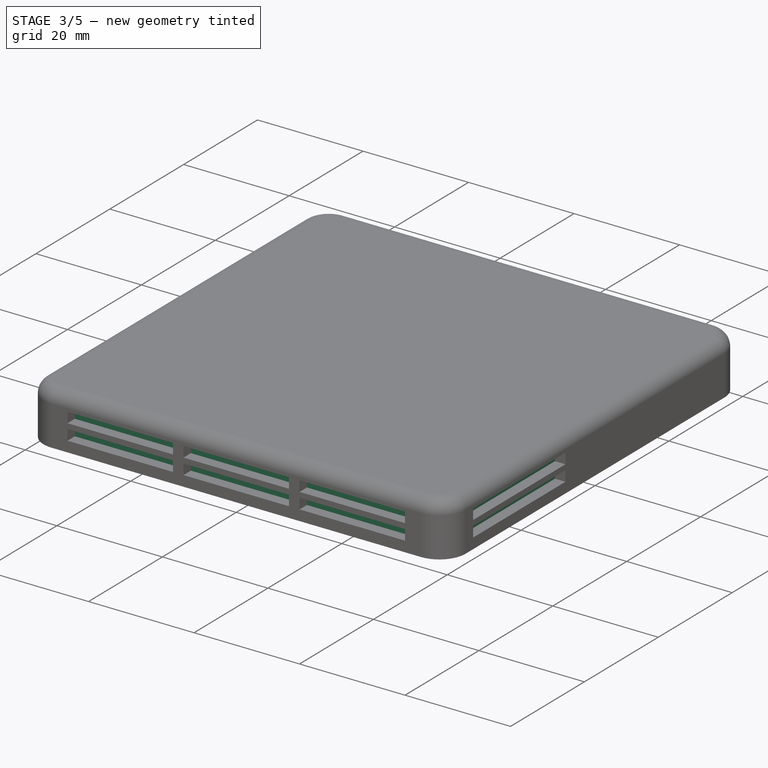
[diagram: stage 3 of 5 — iso view after this stage's code; geometry added in this stage tinted green]
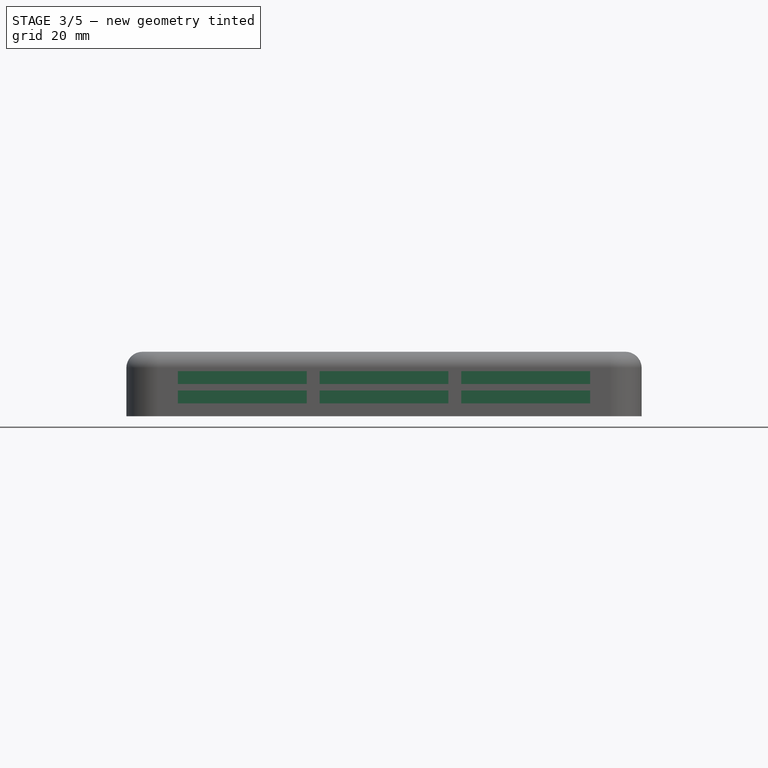
[diagram: stage 3 of 5 — front view after this stage's code; geometry added in this stage tinted green]
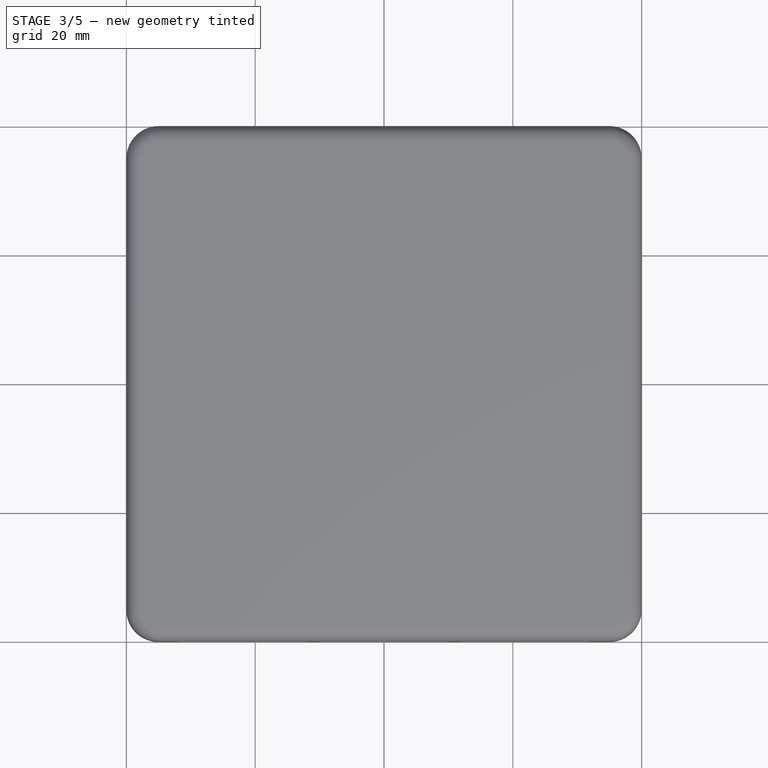
[diagram: stage 3 of 5 — top view after this stage's code; geometry added in this stage tinted green]
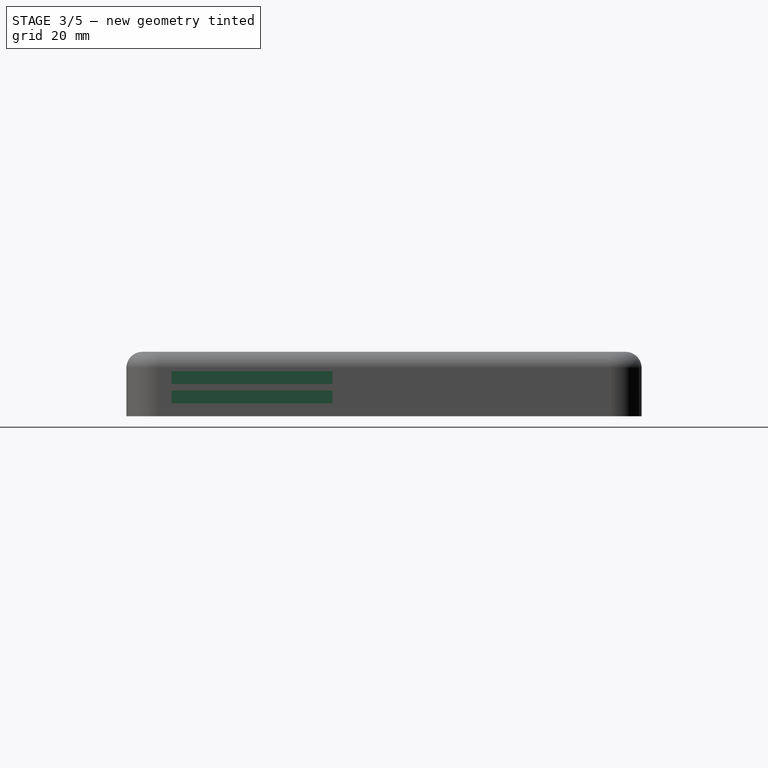
[diagram: stage 3 of 5 — right view after this stage's code; geometry added in this stage tinted green]
FEATURE [App::DocumentObjectGroup] Group001  label="Mount box"
  Group = -> [Pad001,Pad002]
FEATURE [Sketcher::SketchObject] Sketch006
  sketch-geometry (8):
    g0: LineSegment StartX=-35 StartY=-37.5 StartZ=0 EndX=35 EndY=-37.5 EndZ=0
    g1: LineSegment StartX=35 StartY=37.5 StartZ=0 EndX=-35 EndY=37.5 EndZ=0
    g2: ArcOfCircle CenterX=-35 CenterY=35 CenterZ=0 NormalX=0 NormalY=0 NormalZ=1 Radius=2.5 StartAngle=1.5708 EndAngle=3.14159
    g3: ArcOfCircle CenterX=35 CenterY=35 CenterZ=0 NormalX=0 NormalY=0 NormalZ=1 Radius=2.5 StartAngle=6.47054e-06 EndAngle=1.57079
    g4: LineSegment StartX=37.5 StartY=35 StartZ=0 EndX=37.5 EndY=-35 EndZ=0
    g5: ArcOfCircle CenterX=35 CenterY=-35 CenterZ=0 NormalX=0 NormalY=0 NormalZ=1 Radius=2.5 StartAngle=4.71239 EndAngle=6.28319
    g6: ArcOfCircle CenterX=-35 CenterY=-35 CenterZ=0 NormalX=0 NormalY=0 NormalZ=1 Radius=2.5 StartAngle=3.14159 EndAngle=4.71239
    g7: LineSegment StartX=-37.5 StartY=35 StartZ=0 EndX=-37.5 EndY=-35 EndZ=0
  constraints (26):
    c: Coincident(g3,g1)
    c: Coincident(g4,g3)
    c: Coincident(g2,g1)
    c: Coincident(g6,g0)
    c: Coincident(g4,g5)
    c: Coincident(g0,g5)
    c: Radius(g2) = 2.5
    c: Symmetric(g6,g3,g-1)
    c: Symmetric(g2,g4,g-1)
    c: DistanceY(g6,g2) = 70
    c: Tangent(g2,g1)
    c: Tangent(g3,g1)
    c: Tangent(g4,g3)
    c: Tangent(g5,g4)
    c: Tangent(g5,g0)
    c: Tangent(g6,g0)
    c: Coincident(g7,g2)
    c: Coincident(g7,g6)
    c: Vertical(g7)
    c: Tangent(g7,g6)
    c: Tangent(g2,g7)
    c: Horizontal(g0)
    c: Horizontal(g1)
    c: Vertical(g4)
    c: DistanceX(g2,g3) = 70
    c: Radius(g3) = 2.5
FEATURE [PartDesign::Pad] Pad003  label="Boden"
  Length = 7
  Length2 = 100
  Sketch = -> Sketch006
  Type = 0
FEATURE [App::DocumentObjectGroup] Group003  label="Bottom"
  Group = -> [Pad003,Pocket002,Pocket008,Pocket009,Pad009,Pad010,Chamfer,Fillet001,Pocket010]
FEATURE [Sketcher::SketchObject] Sketch023
  ExternalGeometry = -> [Pocket007]
  Placement = pos=(0,38,0) rot=(1,0,0;1.5708rad)
  Support = -> Pocket007 [Face27]
  sketch-geometry (8):
    g0: LineSegment StartX=37.5 StartY=3.8 StartZ=0 EndX=37.5 EndY=2.2 EndZ=0
    g1: LineSegment StartX=-37.5 StartY=2.2 StartZ=0 EndX=-37.5 EndY=3.8 EndZ=0
    g2: LineSegment StartX=-37.5 StartY=2.2 StartZ=0 EndX=-32 EndY=2.2 EndZ=0
    g3: LineSegment StartX=-32 StartY=2.2 StartZ=0 EndX=-32 EndY=3.8 EndZ=0
    g4: LineSegment StartX=-32 StartY=3.8 StartZ=0 EndX=-37.5 EndY=3.8 EndZ=0
    g5: LineSegment StartX=37.5 StartY=2.2 StartZ=0 EndX=32 EndY=2.2 EndZ=0
    g6: LineSegment StartX=32 StartY=2.2 StartZ=0 EndX=32 EndY=3.8 EndZ=0
    g7: LineSegment StartX=32 StartY=3.8 StartZ=0 EndX=37.5 EndY=3.8 EndZ=0
  constraints (24):
    c: Vertical(g0)
    c: Vertical(g1)
    c: DistanceX(g1,g-3) = 2.5
    c: DistanceY(g1,g1) = 1.6
    c: DistanceY(g-3,g1) = 2.2
    c: DistanceX(g-4,g0) = 2.5
    c: Coincident(g1,g2)
    c: Horizontal(g2)
    c: Coincident(g2,g3)
    c: Vertical(g3)
    c: Coincident(g3,g4)
    c: Coincident(g4,g1)
    c: Horizontal(g4)
    c: DistanceX(g-3,g2) = 3
    c: DistanceY(g-4,g0) = 2.2
    c: DistanceY(g0,g0) = 1.6
    c: Horizontal(g5)
    c: Coincident(g5,g6)
    c: Coincident(g6,g7)
    c: Coincident(g7,g0)
    c: Horizontal(g7)
    c: Coincident(g0,g5)
    c: Vertical(g6)
    c: DistanceX(g5,g-4) = 3
FEATURE [PartDesign::Pad] Pad011
  Length = 1.5
  Length2 = 100
  Sketch = -> Sketch023
  Type = 0
FEATURE [PartDesign::Chamfer] Chamfer001
  Base = -> Pad011 [Edge300,Edge292,Edge288,Edge296]
  Size = 0.2
FEATURE [Sketcher::SketchObject] Sketch024
  ExternalGeometry = -> [Chamfer001]
  Placement = pos=(0,-38,0) rot=(0,0.707107,0.707107;3.14159rad)
  Support = -> Chamfer001 [Face46]
  sketch-geometry (8):
    g0: LineSegment StartX=-35.1 StartY=5.1 StartZ=0 EndX=-32.9 EndY=5.1 EndZ=0
    g1: LineSegment StartX=-32.9 StartY=5.1 StartZ=0 EndX=-32.9 EndY=0.9 EndZ=0
    g2: LineSegment StartX=-32.9 StartY=0.9 StartZ=0 EndX=-35.1 EndY=0.9 EndZ=0
    g3: LineSegment StartX=-35.1 StartY=0.9 StartZ=0 EndX=-35.1 EndY=5.1 EndZ=0
    g4: LineSegment StartX=35.1 StartY=5.1 StartZ=0 EndX=32.9 EndY=5.1 EndZ=0
    g5: LineSegment StartX=32.9 StartY=5.1 StartZ=0 EndX=32.9 EndY=0.9 EndZ=0
    g6: LineSegment StartX=32.9 StartY=0.9 StartZ=0 EndX=35.1 EndY=0.9 EndZ=0
    g7: LineSegment StartX=35.1 StartY=0.9 StartZ=0 EndX=35.1 EndY=5.1 EndZ=0
  constraints (24):
    c: Coincident(g0,g1)
    c: Coincident(g1,g2)
    c: Coincident(g2,g3)
    c: Coincident(g3,g0)
    c: Horizontal(g0)
    c: Horizontal(g2)
    c: Vertical(g1)
    c: Vertical(g3)
    c: Coincident(g4,g5)
    c: Coincident(g5,g6)
    c: Coincident(g6,g7)
    c: Coincident(g7,g4)
    c: Horizontal(g4)
    c: Horizontal(g6)
    c: Vertical(g5)
    c: Vertical(g7)
    c: DistanceY(g-3,g2) = 0.9
    c: DistanceY(g-4,g6) = 0.9
    c: DistanceY(g1,g1) = 4.2
    c: DistanceX(g4,g4) = 2.2
    c: DistanceY(g5,g5) = 4.2
    c: DistanceX(g0,g0) = 2.2
    c: DistanceX(g2,g-3) = 0.1
    c: DistanceX(g-4,g6) = 0.1
FEATURE [PartDesign::Pocket] Pocket011
  Length = 0.5
  Sketch = -> Sketch024
  Type = 0
FEATURE [App::DocumentObjectGroup] Group002  label="Cover"
  Group = -> [Pad,Fillet,Pocket,Pocket001,Pad007,Pad008,Pocket004,Pocket005,Pocket006,Pocket007,Pad011,Chamfer001,Pocket011]
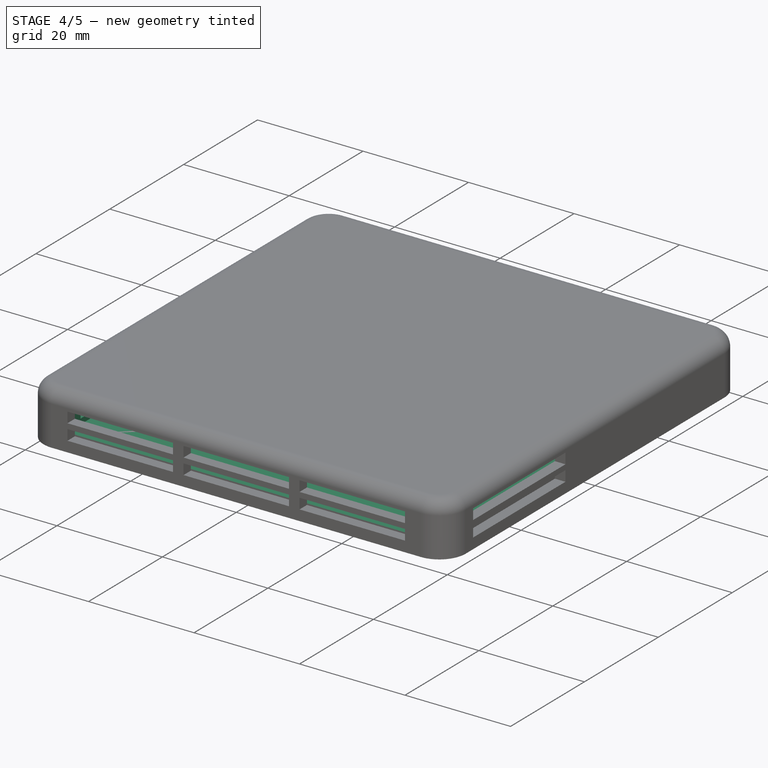
[diagram: stage 4 of 5 — iso view after this stage's code; geometry added in this stage tinted green]
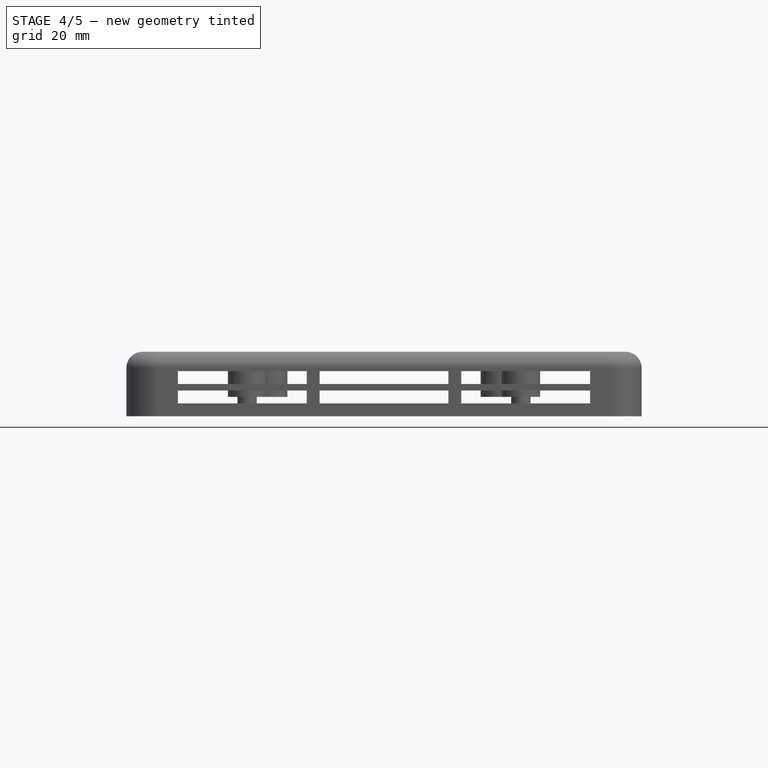
[diagram: stage 4 of 5 — front view after this stage's code; geometry added in this stage tinted green]
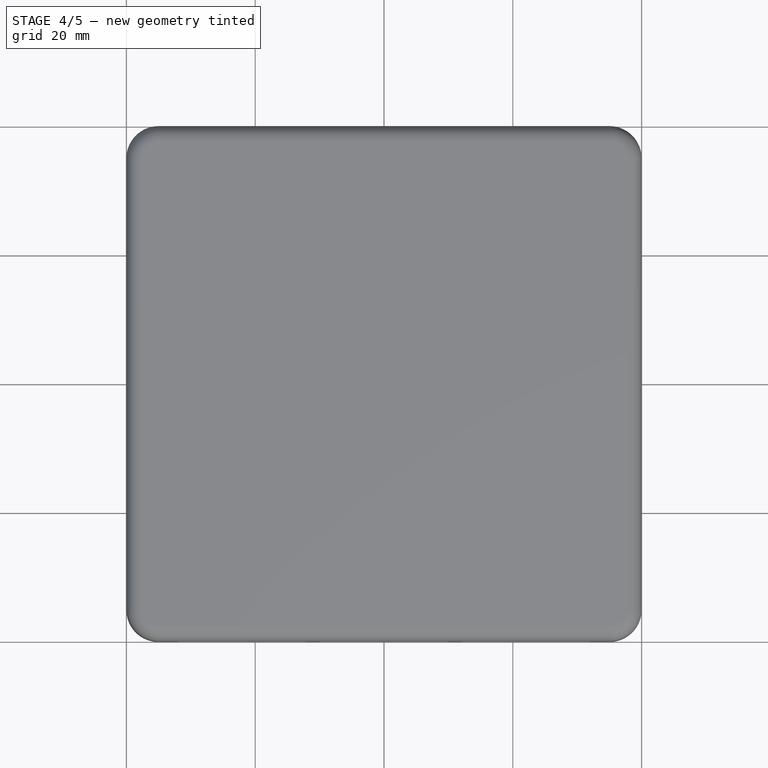
[diagram: stage 4 of 5 — top view after this stage's code; geometry added in this stage tinted green]
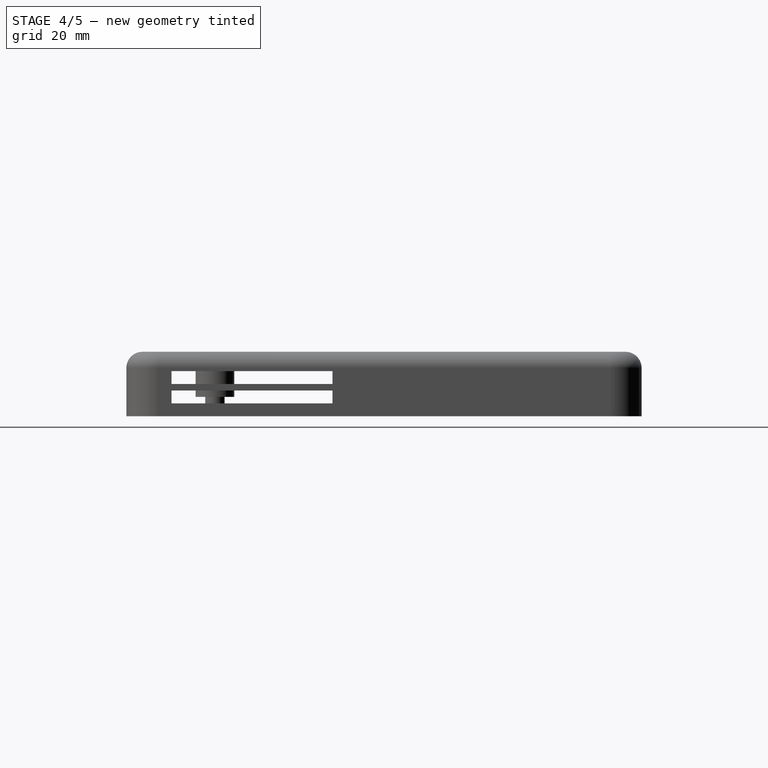
[diagram: stage 4 of 5 — right view after this stage's code; geometry added in this stage tinted green]
FEATURE [Sketcher::SketchObject] Sketch007
  Placement = pos=(0,0,0) rot=(1,0,0;3.14159rad)
  Support = -> Pad003 [Face9]
  sketch-geometry (4):
    g0: LineSegment StartX=-15 StartY=20 StartZ=0 EndX=15 EndY=20 EndZ=0
    g1: LineSegment StartX=-15 StartY=-20 StartZ=0 EndX=15 EndY=-20 EndZ=0
    g2: ArcOfCircle CenterX=0 CenterY=0 CenterZ=0 NormalX=0 NormalY=0 NormalZ=1 Radius=25 StartAngle=5.35589 EndAngle=7.21048
    g3: ArcOfCircle CenterX=0 CenterY=0 CenterZ=0 NormalX=0 NormalY=0 NormalZ=1 Radius=25 StartAngle=2.2143 EndAngle=4.06889
  constraints (12):
    c: Horizontal(g0)
    c: Horizontal(g1)
    c: Coincident(g2,g-1)
    c: Coincident(g2,g0)
    c: Coincident(g3,g-1)
    c: Coincident(g0,g3)
    c: Coincident(g1,g2)
    c: Coincident(g3,g1)
    c: Radius(g2) = 25
    c: Radius(g3) = 25
    c: Symmetric(g1,g0,g-1)
    c: DistanceY(g1,g0) = 40
FEATURE [PartDesign::Pocket] Pocket002
  Length = 7
  Sketch = -> Sketch007
  Type = 0
FEATURE [PartDesign::Pocket] Pocket008
  Length = 10
  Sketch = -> Sketch009
  Type = 0
FEATURE [Sketcher::SketchObject] Sketch019
  ExternalGeometry = -> [Pocket008]
  Placement = pos=(0,0,7) rot=(0,0,1;0rad)
  Support = -> Pocket008 [Face5]
  sketch-geometry (20):
    g0: LineSegment StartX=35 StartY=-35 StartZ=0 EndX=33 EndY=-35 EndZ=0
    g1: LineSegment StartX=35 StartY=35 StartZ=0 EndX=35 EndY=5 EndZ=0
    g2: LineSegment StartX=35 StartY=5 StartZ=0 EndX=37.5 EndY=5 EndZ=0
    g3: LineSegment StartX=37.5 StartY=5 StartZ=0 EndX=37.5 EndY=-33 EndZ=0
    g4: LineSegment StartX=37.5 StartY=-33 StartZ=0 EndX=35 EndY=-33 EndZ=0
    g5: LineSegment StartX=35 StartY=-33 StartZ=0 EndX=35 EndY=-35 EndZ=0
    g6: LineSegment StartX=33 StartY=-35 StartZ=0 EndX=33 EndY=-37.5 EndZ=0
    g7: LineSegment StartX=33 StartY=-37.5 StartZ=0 EndX=-33 EndY=-37.5 EndZ=0
    g8: LineSegment StartX=-33 StartY=-37.5 StartZ=0 EndX=-33 EndY=-35 EndZ=0
    g9: LineSegment StartX=-33 StartY=-35 StartZ=0 EndX=-35 EndY=-35 EndZ=0
    g10: LineSegment StartX=-35 StartY=-35 StartZ=0 EndX=-35 EndY=-33 EndZ=0
    g11: LineSegment StartX=-35 StartY=-33 StartZ=0 EndX=-37.5 EndY=-33 EndZ=0
    g12: LineSegment StartX=-37.5 StartY=-33 StartZ=0 EndX=-37.5 EndY=5 EndZ=0
    g13: LineSegment StartX=-37.5 StartY=5 StartZ=0 EndX=-35 EndY=5 EndZ=0
    g14: LineSegment StartX=-35 StartY=5 StartZ=0 EndX=-35 EndY=35 EndZ=0
    g15: LineSegment StartX=-35 StartY=35 StartZ=0 EndX=-33 EndY=35 EndZ=0
    g16: LineSegment StartX=-33 StartY=35 StartZ=0 EndX=-33 EndY=37.5 EndZ=0
    g17: LineSegment StartX=-33 StartY=37.5 StartZ=0 EndX=33 EndY=37.5 EndZ=0
    g18: LineSegment StartX=33 StartY=37.5 StartZ=0 EndX=33 EndY=35 EndZ=0
    g19: LineSegment StartX=33 StartY=35 StartZ=0 EndX=35 EndY=35 EndZ=0
  constraints (60):
    c: Horizontal(g0)
    c: Vertical(g1)
    c: Coincident(g1,g2)
    c: Horizontal(g2)
    c: Vertical(g3)
    c: Coincident(g3,g4)
    c: Horizontal(g4)
    c: Coincident(g4,g5)
    c: Coincident(g5,g0)
    c: Coincident(g2,g3)
    c: Coincident(g0,g6)
    c: Vertical(g6)
    c: Coincident(g6,g7)
    c: Horizontal(g7)
    c: Coincident(g7,g8)
    c: Vertical(g8)
    c: Coincident(g8,g9)
    c: Horizontal(g9)
    c: Coincident(g9,g10)
    c: Vertical(g10)
    c: Coincident(g10,g11)
    c: Horizontal(g11)
    c: Coincident(g11,g12)
    c: Vertical(g12)
    c: Coincident(g12,g13)
    c: Horizontal(g13)
    c: Coincident(g13,g14)
    c: Vertical(g14)
    c: DistanceY(g14,g14) = 30
    c: DistanceY(g1,g1) = 30
    c: Vertical(g5)
    c: DistanceY(g5,g5) = 2
    c: DistanceX(g0,g0) = 2
    c: DistanceX(g4,g4) = 2.5
    c: DistanceX(g9,g9) = 2
    c: DistanceY(g10,g10) = 2
    c: DistanceY(g6,g6) = 2.5
    c: DistanceY(g8,g8) = 2.5
    c: DistanceX(g11,g11) = 2.5
    c: DistanceX(g2,g2) = 2.5
    c: DistanceX(g13,g13) = 2.5
    c: Coincident(g14,g15)
    c: Horizontal(g15)
    c: Coincident(g15,g16)
    c: PointOnObject(g16,g-6)
    c: Vertical(g16)
    c: Coincident(g16,g17)
    c: PointOnObject(g17,g-6)
    c: Coincident(g17,g18)
    c: Vertical(g18)
    c: Coincident(g18,g19)
    c: Coincident(g19,g1)
    c: Horizontal(g19)
    c: DistanceY(g16,g16) = 2.5
    c: DistanceY(g18,g18) = 2.5
    c: PointOnObject(g2,g-5)
    c: PointOnObject(g12,g-4)
    c: DistanceX(g15,g15) = 2
    c: DistanceX(g19,g19) = 2
    c: PointOnObject(g7,g-3)
FEATURE [PartDesign::Pocket] Pocket009
  Length = 6
  Sketch = -> Sketch019
  Type = 0
FEATURE [Sketcher::SketchObject] Sketch020
  ExternalGeometry = -> [Pocket009]
  Placement = pos=(0,0,1) rot=(0,0,1;0rad)
  Support = -> Pocket009 [Face9]
  sketch-geometry (16):
    g0: LineSegment StartX=-33 StartY=-37.5 StartZ=0 EndX=33 EndY=-37.5 EndZ=0
    g1: LineSegment StartX=33 StartY=-37.5 StartZ=0 EndX=33 EndY=-35 EndZ=0
    g2: LineSegment StartX=33 StartY=-35 StartZ=0 EndX=-33 EndY=-35 EndZ=0
    g3: LineSegment StartX=-33 StartY=-35 StartZ=0 EndX=-33 EndY=-37.5 EndZ=0
    g4: LineSegment StartX=37.5 StartY=-33 StartZ=0 EndX=35 EndY=-33 EndZ=0
    g5: LineSegment StartX=35 StartY=-33 StartZ=0 EndX=35 EndY=5 EndZ=0
    g6: LineSegment StartX=35 StartY=5 StartZ=0 EndX=37.5 EndY=5 EndZ=0
    g7: LineSegment StartX=37.5 StartY=5 StartZ=0 EndX=37.5 EndY=-33 EndZ=0
    g8: LineSegment StartX=33 StartY=35 StartZ=0 EndX=-33 EndY=35 EndZ=0
    g9: LineSegment StartX=-33 StartY=35 StartZ=0 EndX=-33 EndY=37.5 EndZ=0
    g10: LineSegment StartX=-33 StartY=37.5 StartZ=0 EndX=33 EndY=37.5 EndZ=0
    g11: LineSegment StartX=33 StartY=37.5 StartZ=0 EndX=33 EndY=35 EndZ=0
    g12: LineSegment StartX=-35 StartY=-33 StartZ=0 EndX=-37.5 EndY=-33 EndZ=0
    g13: LineSegment StartX=-37.5 StartY=-33 StartZ=0 EndX=-37.5 EndY=5 EndZ=0
    g14: LineSegment StartX=-37.5 StartY=5 StartZ=0 EndX=-35 EndY=5 EndZ=0
    g15: LineSegment StartX=-35 StartY=5 StartZ=0 EndX=-35 EndY=-33 EndZ=0
  constraints (40):
    c: Coincident(g0,g1)
    c: Coincident(g1,g2)
    c: Coincident(g2,g3)
    c: Coincident(g3,g0)
    c: Horizontal(g0)
    c: Horizontal(g2)
    c: Vertical(g1)
    c: Vertical(g3)
    c: Coincident(g0,g-8)
    c: Coincident(g1,g-9)
    c: Coincident(g4,g5)
    c: Coincident(g5,g6)
    c: Coincident(g6,g7)
    c: Coincident(g7,g4)
    c: Horizontal(g4)
    c: Horizontal(g6)
    c: Vertical(g5)
    c: Vertical(g7)
    c: Coincident(g4,g-11)
    c: Coincident(g5,g-15)
    c: Coincident(g8,g9)
    c: Coincident(g9,g10)
    c: Coincident(g10,g11)
    c: Coincident(g11,g8)
    c: Horizontal(g8)
    c: Horizontal(g10)
    c: Vertical(g9)
    c: Vertical(g11)
    c: Coincident(g8,g-21)
    c: Coincident(g9,g-20)
    c: Coincident(g12,g13)
    c: Coincident(g13,g14)
    c: Coincident(g14,g15)
    c: Coincident(g15,g12)
    c: Horizontal(g12)
    c: Horizontal(g14)
    c: Vertical(g13)
    c: Vertical(g15)
    c: Coincident(g12,g-3)
    c: Coincident(g13,g-13)
FEATURE [PartDesign::Pad] Pad009
  Length = 1
  Length2 = 100
  Sketch = -> Sketch020
  Type = 0
FEATURE [Sketcher::SketchObject] Sketch021
  ExternalGeometry = -> [Pad009]
  Placement = pos=(0,-37.5,0) rot=(1,0,0;1.5708rad)
  Support = -> Pad009 [Face16]
  sketch-geometry (8):
    g0: LineSegment StartX=-33 StartY=5 StartZ=0 EndX=-35 EndY=5 EndZ=0
    g1: LineSegment StartX=-35 StartY=5 StartZ=0 EndX=-35 EndY=1 EndZ=0
    g2: LineSegment StartX=-35 StartY=1 StartZ=0 EndX=-33 EndY=1 EndZ=0
    g3: LineSegment StartX=-33 StartY=1 StartZ=0 EndX=-33 EndY=5 EndZ=0
    g4: LineSegment StartX=33 StartY=5 StartZ=0 EndX=35 EndY=5 EndZ=0
    g5: LineSegment StartX=35 StartY=5 StartZ=0 EndX=35 EndY=1 EndZ=0
    g6: LineSegment StartX=35 StartY=1 StartZ=0 EndX=33 EndY=1 EndZ=0
    g7: LineSegment StartX=33 StartY=1 StartZ=0 EndX=33 EndY=5 EndZ=0
  constraints (24):
    c: Coincident(g0,g1)
    c: Coincident(g1,g2)
    c: Coincident(g2,g3)
    c: Coincident(g3,g0)
    c: Horizontal(g0)
    c: Horizontal(g2)
    c: Vertical(g1)
    c: Vertical(g3)
    c: Coincident(g4,g5)
    c: Coincident(g5,g6)
    c: Coincident(g6,g7)
    c: Coincident(g7,g4)
    c: Horizontal(g4)
    c: Horizontal(g6)
    c: Vertical(g5)
    c: Vertical(g7)
    c: PointOnObject(g4,g-5)
    c: DistanceY(g-3,g1) = 1
    c: DistanceX(g2,g2) = 2
    c: DistanceY(g1,g1) = 4
    c: DistanceX(g-3,g1) = 0
    c: DistanceY(g-3,g5) = 1
    c: DistanceX(g6,g6) = 2
    c: DistanceY(g5,g5) = 4
FEATURE [PartDesign::Pad] Pad010
  Length = 1
  Length2 = 100
  Sketch = -> Sketch021
  Type = 0
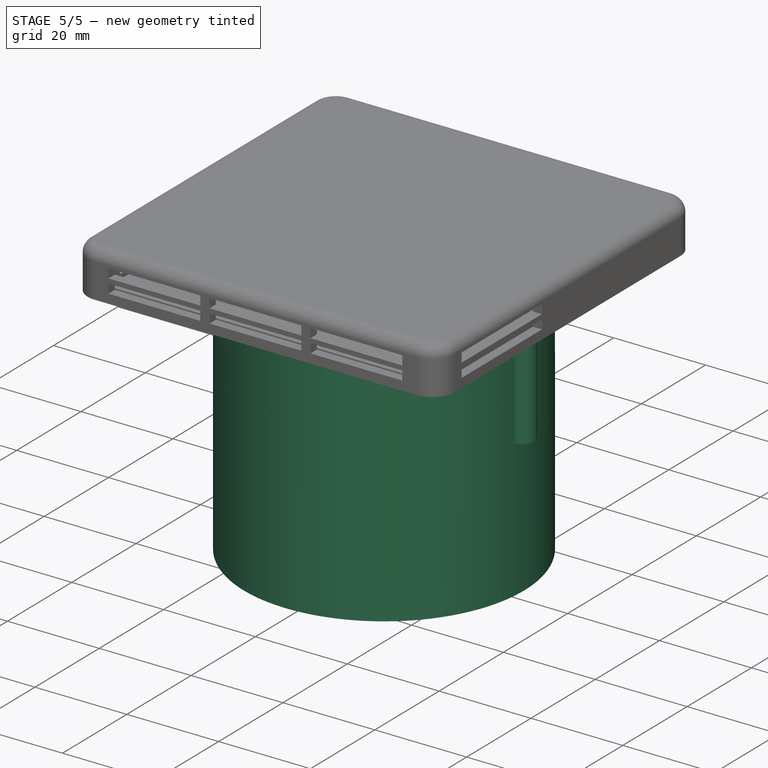
[diagram: stage 5 of 5 — iso view after this stage's code; geometry added in this stage tinted green]
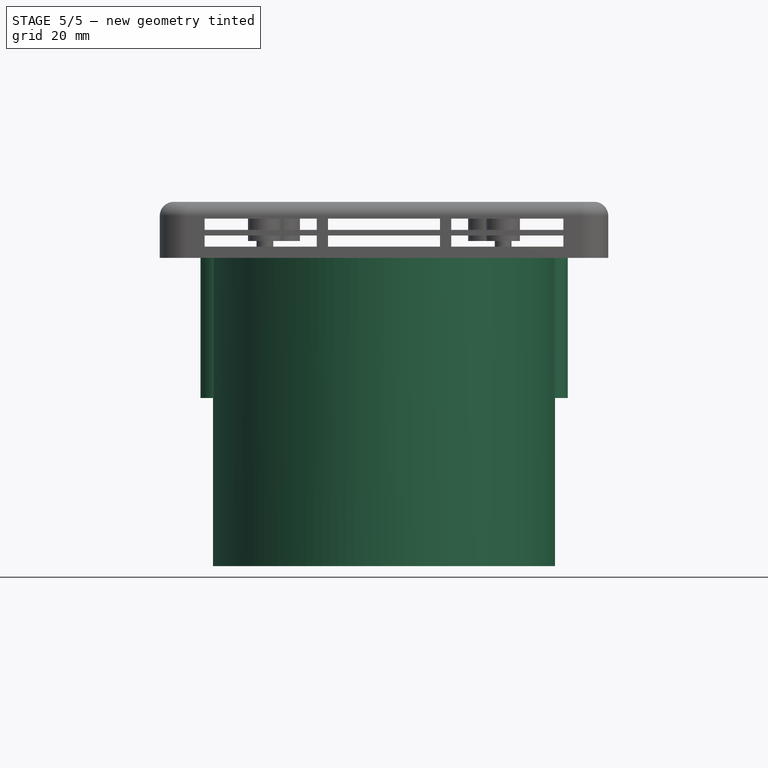
[diagram: stage 5 of 5 — front view after this stage's code; geometry added in this stage tinted green]
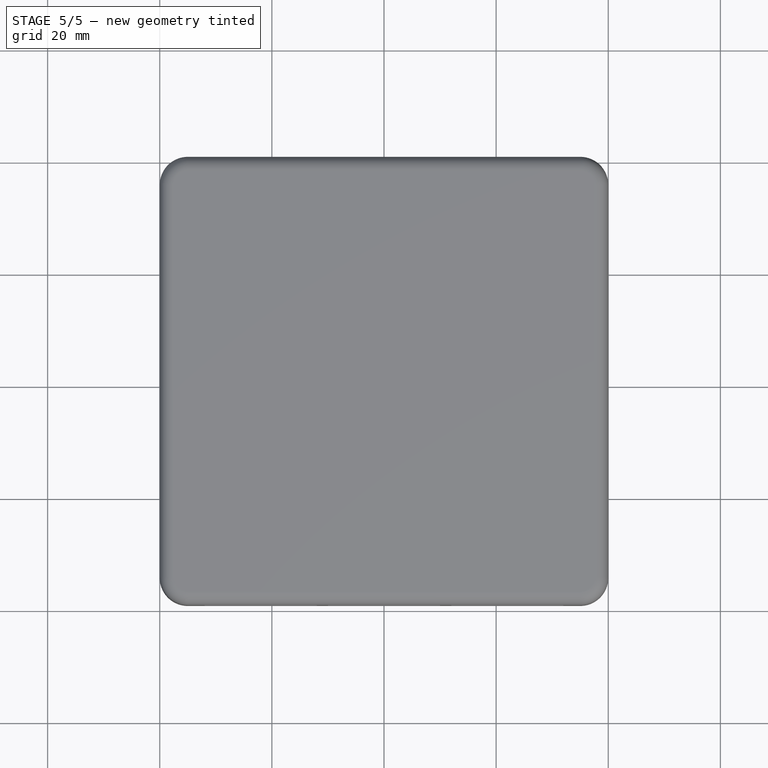
[diagram: stage 5 of 5 — top view after this stage's code; geometry added in this stage tinted green]
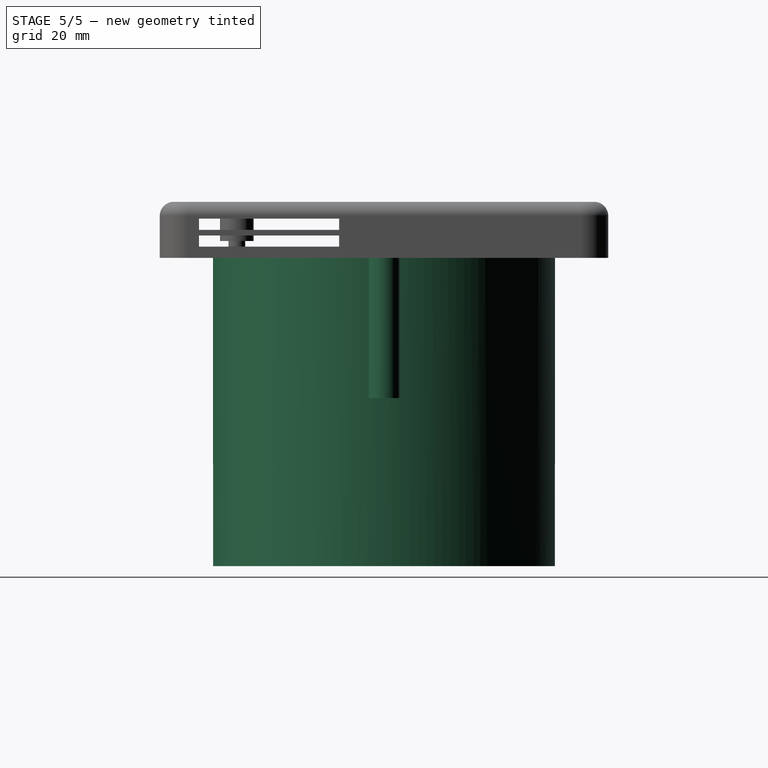
[diagram: stage 5 of 5 — right view after this stage's code; geometry added in this stage tinted green]
FEATURE [Part::Feature] Board_outline
  Placement = pos=(-145.022,90.1009,2) rot=(0,0,1;0rad)
  shape: bbox 60 x 60 x 1.6 mm, 47 faces (baked)
FEATURE [App::DocumentObjectGroup] Board_Geoms
  Group = -> [Board_outline]
FEATURE [Sketcher::SketchObject] Sketch004
  sketch-geometry (2):
    g0: Circle CenterX=0 CenterY=0 CenterZ=0 NormalX=0 NormalY=0 NormalZ=1 Radius=29.5
    g1: Circle CenterX=0 CenterY=0 CenterZ=0 NormalX=0 NormalY=0 NormalZ=1 Radius=30.5
  constraints (4):
    c: Coincident(g0,g-1)
    c: Coincident(g1,g-1)
    c: Radius(g0) = 29.5
    c: Radius(g1) = 30.5
FEATURE [PartDesign::Pad] Pad001
  Length = 55
  Length2 = 100
  Reversed = true
  Sketch = -> Sketch004
  Type = 0
FEATURE [Sketcher::SketchObject] Sketch005
  ExternalGeometry = -> [Pad001]
  Support = -> Pad001 [Face3]
  sketch-geometry (2):
    g0: Circle CenterX=30 CenterY=0 CenterZ=0 NormalX=0 NormalY=0 NormalZ=1 Radius=2.78932
    g1: Circle CenterX=-30 CenterY=0 CenterZ=0 NormalX=0 NormalY=0 NormalZ=1 Radius=2.7358
  constraints (4):
    c: PointOnObject(g0,g-1)
    c: PointOnObject(g1,g-1)
    c: Symmetric(g1,g0,g-2)
    c: DistanceX(g-2,g0) = 30
FEATURE [PartDesign::Pad] Pad002
  Length = 25
  Length2 = 100
  Reversed = true
  Sketch = -> Sketch005
  Type = 0
FEATURE [PartDesign::Chamfer] Chamfer
  Base = -> Pad010 [Edge152,Edge157,Edge169,Edge141]
  Size = 0.45
FEATURE [PartDesign::Fillet] Fillet001
  Base = -> Chamfer [Edge79,Edge80,Edge29,Edge68,Edge15,Edge58,Edge104,Edge103,Edge96,Edge95,Edge93,Edge57]
  Radius = 1
FEATURE [Sketcher::SketchObject] Sketch022
  ExternalGeometry = -> [Fillet001]
  Placement = pos=(0,37.5,0) rot=(0,0.707107,0.707107;3.14159rad)
  Support = -> Fillet001 [Face18]
  sketch-geometry (4):
    g0: LineSegment StartX=-37.5 StartY=4 StartZ=0 EndX=37.5 EndY=4 EndZ=0
    g1: LineSegment StartX=37.5 StartY=4 StartZ=0 EndX=37.5 EndY=2 EndZ=0
    g2: LineSegment StartX=37.5 StartY=2 StartZ=0 EndX=-37.5 EndY=2 EndZ=0
    g3: LineSegment StartX=-37.5 StartY=2 StartZ=0 EndX=-37.5 EndY=4 EndZ=0
  constraints (12):
    c: Coincident(g0,g1)
    c: Coincident(g2,g3)
    c: Coincident(g3,g0)
    c: Horizontal(g0)
    c: Horizontal(g2)
    c: Vertical(g1)
    c: Vertical(g3)
    c: DistanceY(g-3,g2) = 2
    c: Coincident(g2,g1)
    c: DistanceY(g2,g0) = 2
    c: DistanceX(g2,g-3) = 2.5
    c: DistanceX(g-4,g1) = 2.5
FEATURE [PartDesign::Pocket] Pocket010
  Length = 1
  Sketch = -> Sketch022
  Type = 0
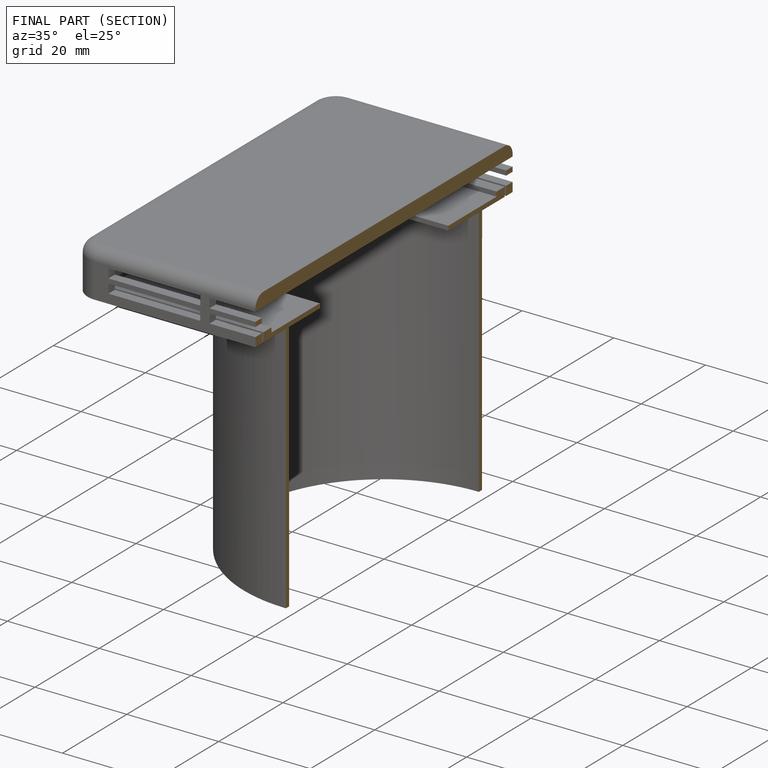
[diagram: finished part — half-section view (interior)]
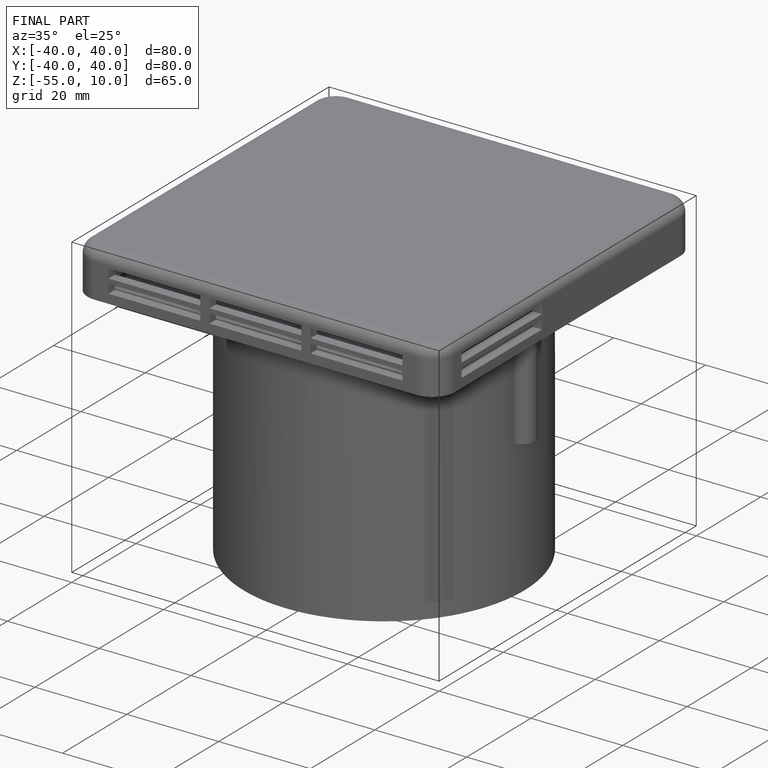
[diagram: finished part — iso view with bounding-box wireframe]
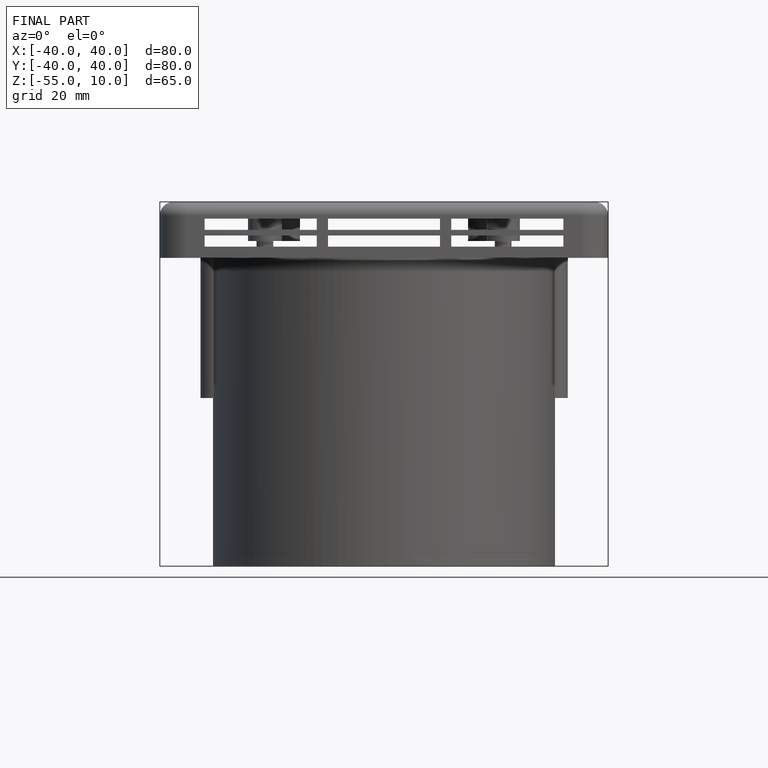
[diagram: finished part — front view with bounding-box wireframe]
